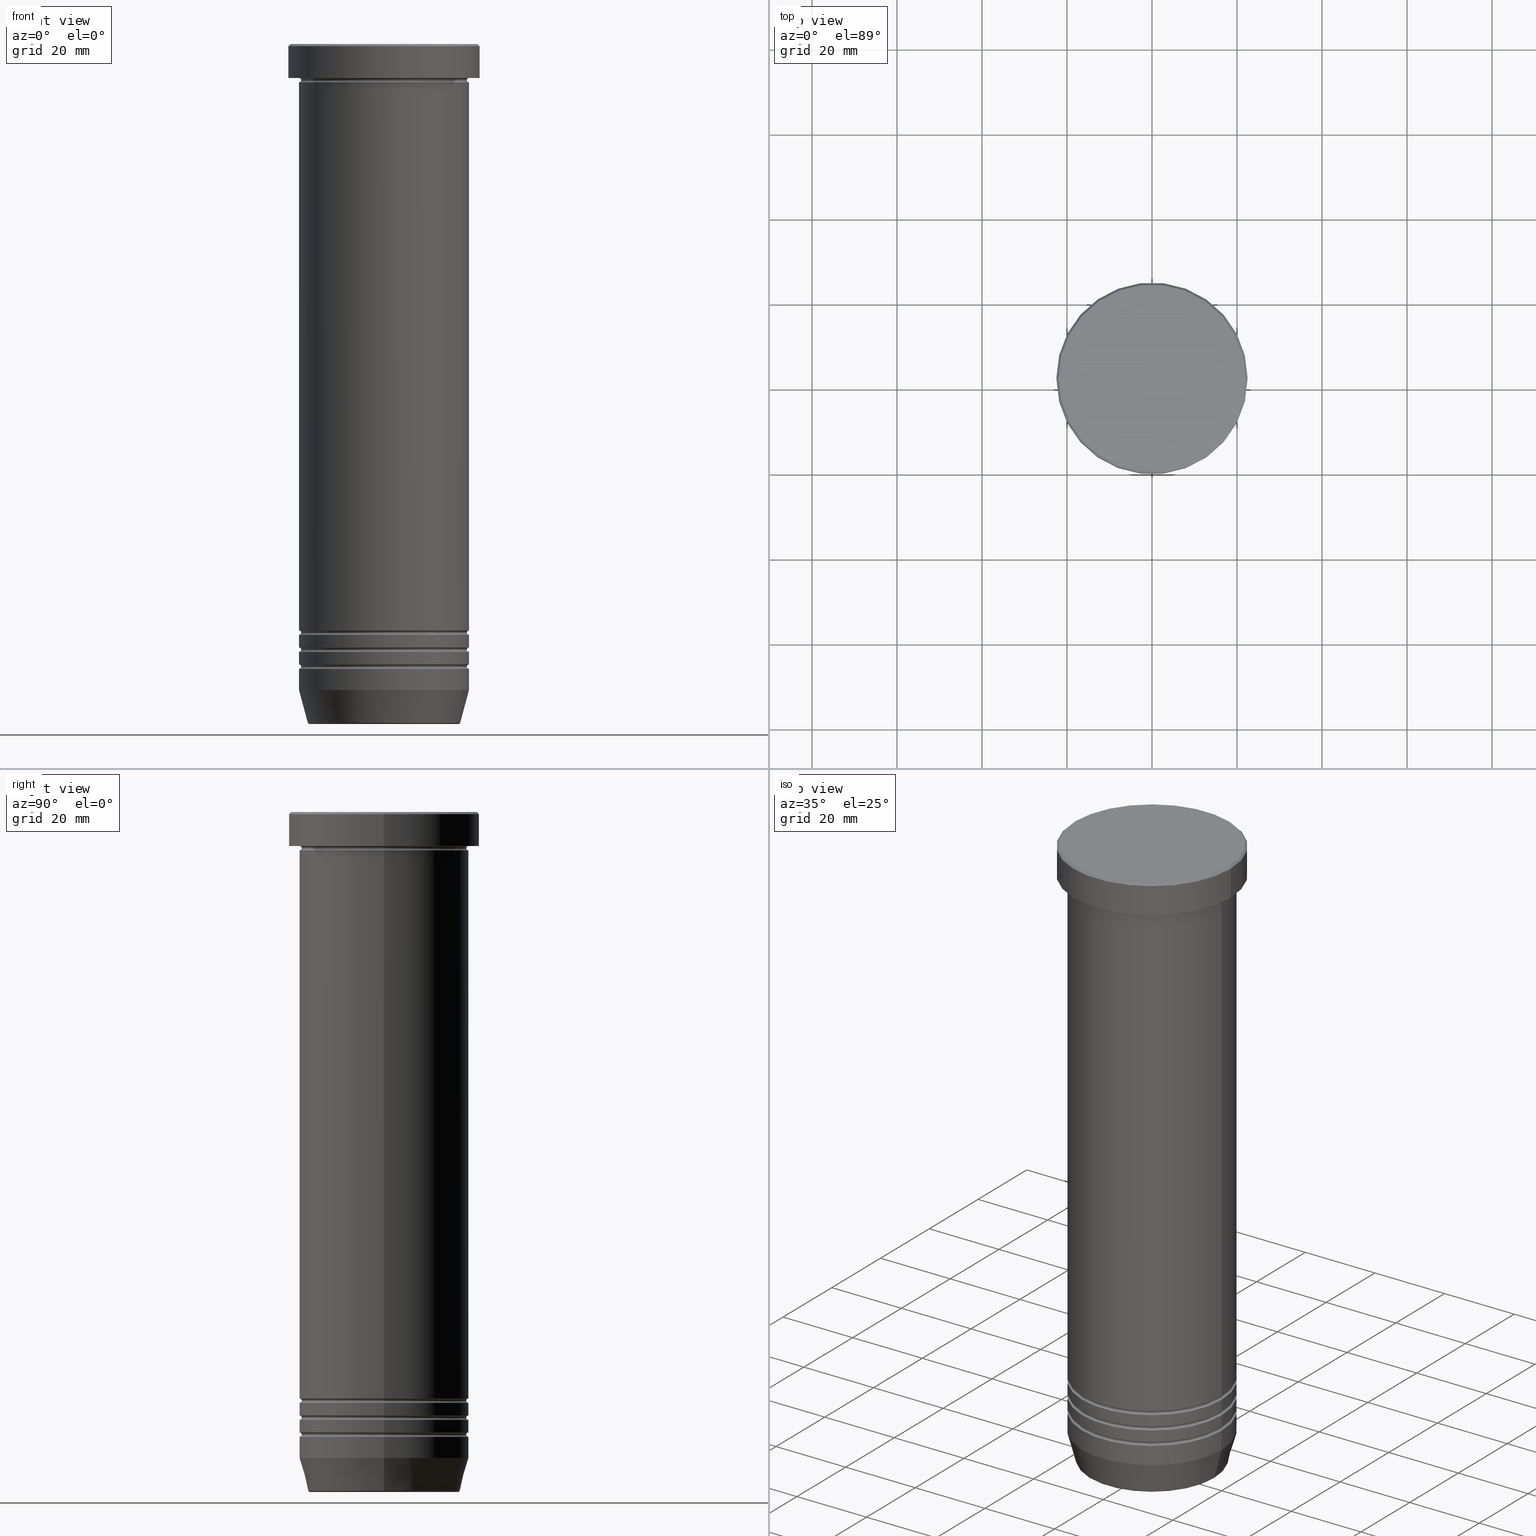
[diagram: canonical four-view strip — front | top / right | iso, engineering-drawing reading convention]
A machine part, canonical four-view strip (front | top / right | iso — engineering-drawing reading convention). The complete STEP part file that produces these views, byte-faithful:
ISO-10303-21;
HEADER;
FILE_DESCRIPTION (( 'STEP AP203' ),
    '1' );
FILE_NAME ('2e38.STEP',
    '2024-01-02T18:51:40',
    ( '' ),
    ( '' ),
    'SwSTEP 2.0',
    'SolidWorks 2019',
    '' );
FILE_SCHEMA (( 'CONFIG_CONTROL_DESIGN' ));
ENDSEC;

DATA;
#1 = LINE ( 'NONE', #243, #533 ) ;
#2 = ADVANCED_FACE ( 'NONE', ( #282 ), #859, .T. ) ;
#3 = DIRECTION ( 'NONE',  ( 0.000000000000000000, 0.000000000000000000, -1.000000000000000000 ) ) ;
#4 = DATE_AND_TIME ( #92, #773 ) ;
#5 = DIRECTION ( 'NONE',  ( -0.000000000000000000, -0.000000000000000000, 1.000000000000000000 ) ) ;
#6 = CARTESIAN_POINT ( 'NONE',  ( -19.99999999999999645, 0.000000000000000000, -146.5000000000000284 ) ) ;
#7 = ADVANCED_FACE ( 'NONE', ( #697 ), #778, .T. ) ;
#8 = APPROVAL_DATE_TIME ( #4, #788 ) ;
#9 = CARTESIAN_POINT ( 'NONE',  ( 0.000000000000000000, 0.000000000000000000, -146.0000000000000284 ) ) ;
#10 = CARTESIAN_POINT ( 'NONE',  ( 19.99999999999999645, 0.000000000000000000, 0.000000000000000000 ) ) ;
#11 = AXIS2_PLACEMENT_3D ( 'NONE', #633, #887, #221 ) ;
#12 = FACE_OUTER_BOUND ( 'NONE', #930, .T. ) ;
#13 = AXIS2_PLACEMENT_3D ( 'NONE', #676, #1000, #702 ) ;
#14 = AXIS2_PLACEMENT_3D ( 'NONE', #134, #929, #451 ) ;
#15 = ORIENTED_EDGE ( 'NONE', *, *, #38, .T. ) ;
#16 = CARTESIAN_POINT ( 'NONE',  ( 0.000000000000000000, 0.000000000000000000, -146.5000000000000284 ) ) ;
#17 = EDGE_LOOP ( 'NONE', ( #230, #605, #421, #792 ) ) ;
#18 = ORIENTED_EDGE ( 'NONE', *, *, #125, .T. ) ;
#19 = CARTESIAN_POINT ( 'NONE',  ( -19.49999999999999645, 2.418677428316021937E-15, -138.5000000000000000 ) ) ;
#20 = DIRECTION ( 'NONE',  ( -1.000000000000000000, 0.000000000000000000, 0.000000000000000000 ) ) ;
#21 = EDGE_LOOP ( 'NONE', ( #1027, #60 ) ) ;
#22 = FACE_OUTER_BOUND ( 'NONE', #541, .T. ) ;
#23 = DIRECTION ( 'NONE',  ( 1.000000000000000000, 0.000000000000000000, 0.000000000000000000 ) ) ;
#24 = DIRECTION ( 'NONE',  ( 1.000000000000000000, 0.000000000000000000, 0.000000000000000000 ) ) ;
#25 = ORIENTED_EDGE ( 'NONE', *, *, #560, .T. ) ;
#26 = VERTEX_POINT ( 'NONE', #337 ) ;
#27 = FACE_OUTER_BOUND ( 'NONE', #757, .T. ) ;
#28 = DIRECTION ( 'NONE',  ( -1.224646799147353207E-16, 1.000000000000000000, 0.000000000000000000 ) ) ;
#29 = DIRECTION ( 'NONE',  ( -0.000000000000000000, -0.000000000000000000, 1.000000000000000000 ) ) ;
#30 = ORIENTED_EDGE ( 'NONE', *, *, #229, .F. ) ;
#31 = AXIS2_PLACEMENT_3D ( 'NONE', #708, #297, #224 ) ;
#32 = TOROIDAL_SURFACE ( 'NONE', #638, 19.99999999999999645, 0.5000000000000000000 ) ;
#33 = COORDINATED_UNIVERSAL_TIME_OFFSET ( 1, 0, .AHEAD. ) ;
#34 = AXIS2_PLACEMENT_3D ( 'NONE', #1059, #657, #231 ) ;
#35 =( GEOMETRIC_REPRESENTATION_CONTEXT ( 3 ) GLOBAL_UNCERTAINTY_ASSIGNED_CONTEXT ( ( #233 ) ) GLOBAL_UNIT_ASSIGNED_CONTEXT ( ( #445, #436, #689 ) ) REPRESENTATION_CONTEXT ( 'NONE', 'WORKASPACE' ) );
#36 = DIRECTION ( 'NONE',  ( 0.000000000000000000, 0.000000000000000000, -1.000000000000000000 ) ) ;
#37 = ORIENTED_EDGE ( 'NONE', *, *, #201, .F. ) ;
#38 = EDGE_CURVE ( 'NONE', #857, #602, #506, .T. ) ;
#39 = DIRECTION ( 'NONE',  ( 0.000000000000000000, 0.000000000000000000, -1.000000000000000000 ) ) ;
#40 = CARTESIAN_POINT ( 'NONE',  ( 0.000000000000000000, 0.000000000000000000, -40.00000000000000000 ) ) ;
#41 = ORIENTED_EDGE ( 'NONE', *, *, #944, .F. ) ;
#42 = DIRECTION ( 'NONE',  ( -0.000000000000000000, -0.000000000000000000, 1.000000000000000000 ) ) ;
#43 = CARTESIAN_POINT ( 'NONE',  ( 0.000000000000000000, 0.000000000000000000, 0.000000000000000000 ) ) ;
#44 = EDGE_CURVE ( 'NONE', #686, #260, #767, .T. ) ;
#45 = CARTESIAN_POINT ( 'NONE',  ( 0.000000000000000000, 0.000000000000000000, -147.0000000000000000 ) ) ;
#46 = ORIENTED_EDGE ( 'NONE', *, *, #481, .T. ) ;
#47 = FACE_OUTER_BOUND ( 'NONE', #866, .T. ) ;
#48 = CARTESIAN_POINT ( 'NONE',  ( 0.000000000000000000, 0.000000000000000000, 0.000000000000000000 ) ) ;
#49 = ORIENTED_EDGE ( 'NONE', *, *, #99, .F. ) ;
#50 = LINE ( 'NONE', #367, #289 ) ;
#51 = ORIENTED_EDGE ( 'NONE', *, *, #110, .T. ) ;
#52 = DIRECTION ( 'NONE',  ( -1.000000000000000000, 0.000000000000000000, 0.000000000000000000 ) ) ;
#53 = TOROIDAL_SURFACE ( 'NONE', #797, 19.99999999999999645, 0.5000000000000000000 ) ;
#54 = ORIENTED_EDGE ( 'NONE', *, *, #667, .F. ) ;
#55 = TOROIDAL_SURFACE ( 'NONE', #922, 19.99999999999999645, 0.5000000000000000000 ) ;
#56 = APPROVAL_PERSON_ORGANIZATION ( #1019, #266, #790 ) ;
#57 = DIRECTION ( 'NONE',  ( 1.000000000000000000, 0.000000000000000000, 0.000000000000000000 ) ) ;
#58 = DIRECTION ( 'NONE',  ( -0.000000000000000000, -0.000000000000000000, 1.000000000000000000 ) ) ;
#59 = DIRECTION ( 'NONE',  ( -0.000000000000000000, -0.000000000000000000, 1.000000000000000000 ) ) ;
#60 = ORIENTED_EDGE ( 'NONE', *, *, #855, .F. ) ;
#61 = DIRECTION ( 'NONE',  ( 0.000000000000000000, 0.000000000000000000, -1.000000000000000000 ) ) ;
#62 = EDGE_CURVE ( 'NONE', #126, #411, #346, .T. ) ;
#63 = ORIENTED_EDGE ( 'NONE', *, *, #554, .T. ) ;
#64 = VERTEX_POINT ( 'NONE', #217 ) ;
#65 = DATE_AND_TIME ( #660, #981 ) ;
#66 = ADVANCED_FACE ( 'NONE', ( #467 ), #375, .T. ) ;
#67 = CARTESIAN_POINT ( 'NONE',  ( 0.000000000000000000, 0.000000000000000000, -159.6294095225512706 ) ) ;
#68 = CARTESIAN_POINT ( 'NONE',  ( 0.000000000000000000, 0.000000000000000000, -8.000000000000000000 ) ) ;
#69 = AXIS2_PLACEMENT_3D ( 'NONE', #210, #544, #538 ) ;
#70 = ORIENTED_EDGE ( 'NONE', *, *, #899, .F. ) ;
#71 = CIRCLE ( 'NONE', #977, 19.99999999999999289 ) ;
#72 = AXIS2_PLACEMENT_3D ( 'NONE', #377, #1042, #962 ) ;
#73 = EDGE_CURVE ( 'NONE', #288, #916, #532, .T. ) ;
#74 = CARTESIAN_POINT ( 'NONE',  ( 0.000000000000000000, 0.000000000000000000, -142.5000000000000284 ) ) ;
#75 = APPROVAL_ROLE ( '' ) ;
#76 = EDGE_CURVE ( 'NONE', #499, #278, #1046, .T. ) ;
#77 = DIRECTION ( 'NONE',  ( 1.000000000000000000, 0.000000000000000000, 0.000000000000000000 ) ) ;
#78 = CYLINDRICAL_SURFACE ( 'NONE', #1032, 20.00000000000000000 ) ;
#79 = DIRECTION ( 'NONE',  ( 1.000000000000000000, 0.000000000000000000, 0.000000000000000000 ) ) ;
#80 = AXIS2_PLACEMENT_3D ( 'NONE', #16, #500, #94 ) ;
#81 = DIRECTION ( 'NONE',  ( 0.2588190451025208505, 0.000000000000000000, 0.9659258262890683122 ) ) ;
#82 = AXIS2_PLACEMENT_3D ( 'NONE', #712, #886, #646 ) ;
#83 = CC_DESIGN_APPROVAL ( #266, ( #207 ) ) ;
#84 = APPROVAL_ROLE ( '' ) ;
#85 = DIRECTION ( 'NONE',  ( 1.000000000000000000, 0.000000000000000000, 0.000000000000000000 ) ) ;
#86 = DIRECTION ( 'NONE',  ( 1.224646799147353207E-16, 1.000000000000000000, 0.000000000000000000 ) ) ;
#87 = EDGE_CURVE ( 'NONE', #916, #288, #161, .T. ) ;
#88 = CARTESIAN_POINT ( 'NONE',  ( 0.000000000000000000, 0.000000000000000000, -40.00000000000000000 ) ) ;
#89 = DIRECTION ( 'NONE',  ( -0.000000000000000000, -0.000000000000000000, 1.000000000000000000 ) ) ;
#90 = DIRECTION ( 'NONE',  ( -0.000000000000000000, -0.000000000000000000, 1.000000000000000000 ) ) ;
#91 = DIRECTION ( 'NONE',  ( -1.000000000000000000, 1.224646799147349509E-16, 0.000000000000000000 ) ) ;
#92 = CALENDAR_DATE ( 2024, 2, 1 ) ;
#93 = DIRECTION ( 'NONE',  ( 0.000000000000000000, 0.000000000000000000, -1.000000000000000000 ) ) ;
#94 = DIRECTION ( 'NONE',  ( 1.000000000000000000, 0.000000000000000000, 0.000000000000000000 ) ) ;
#95 = VECTOR ( 'NONE', #263, 1000.000000000000000 ) ;
#96 = CIRCLE ( 'NONE', #846, 0.5000000000000004441 ) ;
#97 = ORIENTED_EDGE ( 'NONE', *, *, #629, .F. ) ;
#98 = DIRECTION ( 'NONE',  ( -0.000000000000000000, -0.000000000000000000, 1.000000000000000000 ) ) ;
#99 = EDGE_CURVE ( 'NONE', #64, #811, #905, .T. ) ;
#100 = CIRCLE ( 'NONE', #371, 19.99999999999999645 ) ;
#101 = VERTEX_POINT ( 'NONE', #998 ) ;
#102 = PRODUCT_DEFINITION_SHAPE ( 'NONE', 'NONE',  #329 ) ;
#103 = CARTESIAN_POINT ( 'NONE',  ( -19.99999999999999289, 2.449293598294705724E-15, -138.0000000000000000 ) ) ;
#104 = ORIENTED_EDGE ( 'NONE', *, *, #999, .T. ) ;
#105 = DIRECTION ( 'NONE',  ( 1.000000000000000000, 0.000000000000000000, 0.000000000000000000 ) ) ;
#106 = EDGE_LOOP ( 'NONE', ( #698, #1037, #186, #628 ) ) ;
#107 = DIRECTION ( 'NONE',  ( -1.000000000000000000, 0.000000000000000000, 0.000000000000000000 ) ) ;
#108 = DIRECTION ( 'NONE',  ( -0.000000000000000000, -0.000000000000000000, 1.000000000000000000 ) ) ;
#109 = EDGE_CURVE ( 'NONE', #545, #587, #428, .T. ) ;
#110 = EDGE_CURVE ( 'NONE', #602, #857, #141, .T. ) ;
#111 = ORIENTED_EDGE ( 'NONE', *, *, #110, .F. ) ;
#112 = COORDINATED_UNIVERSAL_TIME_OFFSET ( 1, 0, .AHEAD. ) ;
#113 = DIRECTION ( 'NONE',  ( -0.000000000000000000, -0.000000000000000000, 1.000000000000000000 ) ) ;
#114 = CARTESIAN_POINT ( 'NONE',  ( 0.000000000000000000, 0.000000000000000000, -159.5000000000000284 ) ) ;
#115 = EDGE_LOOP ( 'NONE', ( #968, #446, #218, #690 ) ) ;
#116 = ORIENTED_EDGE ( 'NONE', *, *, #73, .F. ) ;
#117 = DIRECTION ( 'NONE',  ( 0.000000000000000000, 0.000000000000000000, -1.000000000000000000 ) ) ;
#118 = EDGE_LOOP ( 'NONE', ( #344, #372 ) ) ;
#119 = AXIS2_PLACEMENT_3D ( 'NONE', #566, #380, #572 ) ;
#120 = TOROIDAL_SURFACE ( 'NONE', #475, 19.99999999999999645, 0.5000000000000000000 ) ;
#121 = CARTESIAN_POINT ( 'NONE',  ( 19.99999999999999645, 0.000000000000000000, 0.000000000000000000 ) ) ;
#122 = CIRCLE ( 'NONE', #1005, 20.00000000000000000 ) ;
#123 = EDGE_LOOP ( 'NONE', ( #960, #947, #302, #232 ) ) ;
#124 = DIRECTION ( 'NONE',  ( 1.000000000000000000, 0.000000000000000000, 0.000000000000000000 ) ) ;
#125 = EDGE_CURVE ( 'NONE', #686, #545, #398, .T. ) ;
#126 = VERTEX_POINT ( 'NONE', #103 ) ;
#127 = CYLINDRICAL_SURFACE ( 'NONE', #599, 20.00000000000000000 ) ;
#128 = CARTESIAN_POINT ( 'NONE',  ( 0.000000000000000000, 0.000000000000000000, 0.000000000000000000 ) ) ;
#129 = DIRECTION ( 'NONE',  ( 1.000000000000000000, 0.000000000000000000, 0.000000000000000000 ) ) ;
#130 = ORIENTED_EDGE ( 'NONE', *, *, #62, .F. ) ;
#131 = DIRECTION ( 'NONE',  ( 0.7071067811865524577, 8.659560562354994488E-17, -0.7071067811865426878 ) ) ;
#132 = DIRECTION ( 'NONE',  ( -1.000000000000000000, -1.224646799147349509E-16, 0.000000000000000000 ) ) ;
#133 = EDGE_LOOP ( 'NONE', ( #439, #1024, #179, #997 ) ) ;
#134 = CARTESIAN_POINT ( 'NONE',  ( 0.000000000000000000, 0.000000000000000000, -138.5000000000000000 ) ) ;
#135 = DIRECTION ( 'NONE',  ( 1.000000000000000000, 0.000000000000000000, 0.000000000000000000 ) ) ;
#136 = APPROVAL_STATUS ( 'not_yet_approved' ) ;
#137 = CARTESIAN_POINT ( 'NONE',  ( -20.00000000000000000, 2.449293598294706513E-15, -40.00000000000000000 ) ) ;
#138 = EDGE_LOOP ( 'NONE', ( #840, #770, #423, #359 ) ) ;
#139 = CYLINDRICAL_SURFACE ( 'NONE', #704, 19.99999999999999645 ) ;
#140 = FACE_OUTER_BOUND ( 'NONE', #133, .T. ) ;
#141 = CIRCLE ( 'NONE', #80, 19.49999999999999645 ) ;
#142 = ADVANCED_FACE ( 'NONE', ( #27 ), #733, .T. ) ;
#143 = PERSON_AND_ORGANIZATION ( #1055, #479 ) ;
#144 = VERTEX_POINT ( 'NONE', #563 ) ;
#145 = AXIS2_PLACEMENT_3D ( 'NONE', #261, #447, #678 ) ;
#146 = FACE_OUTER_BOUND ( 'NONE', #515, .T. ) ;
#147 = VECTOR ( 'NONE', #81, 1000.000000000000114 ) ;
#148 = ADVANCED_BREP_SHAPE_REPRESENTATION ( '2e38', ( #584, #937, #461 ), #35 ) ;
#149 = LOCAL_TIME ( 19, 51, 40.00000000000000000, #33 ) ;
#150 = DIRECTION ( 'NONE',  ( 1.000000000000000000, 0.000000000000000000, 0.000000000000000000 ) ) ;
#151 = DIRECTION ( 'NONE',  ( 0.000000000000000000, 0.000000000000000000, -1.000000000000000000 ) ) ;
#152 = CARTESIAN_POINT ( 'NONE',  ( 19.99999999999999645, 0.000000000000000000, -142.5000000000000284 ) ) ;
#153 = VERTEX_POINT ( 'NONE', #994 ) ;
#154 = DIRECTION ( 'NONE',  ( 0.000000000000000000, -1.000000000000000000, 0.000000000000000000 ) ) ;
#155 = EDGE_CURVE ( 'NONE', #1011, #995, #812, .T. ) ;
#156 = FACE_OUTER_BOUND ( 'NONE', #192, .T. ) ;
#157 = EDGE_LOOP ( 'NONE', ( #226, #206, #1040, #1023 ) ) ;
#158 = EDGE_CURVE ( 'NONE', #376, #1045, #220, .T. ) ;
#159 = CARTESIAN_POINT ( 'NONE',  ( 0.000000000000000000, 0.000000000000000000, -146.5000000000000284 ) ) ;
#160 = PERSON_AND_ORGANIZATION ( #1055, #479 ) ;
#161 = CIRCLE ( 'NONE', #664, 20.00000000000000000 ) ;
#162 = AXIS2_PLACEMENT_3D ( 'NONE', #911, #89, #176 ) ;
#163 = AXIS2_PLACEMENT_3D ( 'NONE', #239, #164, #823 ) ;
#164 = DIRECTION ( 'NONE',  ( -0.000000000000000000, -0.000000000000000000, 1.000000000000000000 ) ) ;
#165 = EDGE_CURVE ( 'NONE', #126, #802, #170, .T. ) ;
#166 = CARTESIAN_POINT ( 'NONE',  ( -19.99999999999999645, 2.449293598294706119E-15, -142.0000000000000000 ) ) ;
#167 = DIRECTION ( 'NONE',  ( 0.000000000000000000, 0.000000000000000000, -1.000000000000000000 ) ) ;
#168 = EDGE_CURVE ( 'NONE', #425, #1045, #679, .T. ) ;
#169 = CARTESIAN_POINT ( 'NONE',  ( 0.000000000000000000, 0.000000000000000000, -146.5000000000000284 ) ) ;
#170 = CIRCLE ( 'NONE', #473, 19.99999999999999289 ) ;
#171 = CIRCLE ( 'NONE', #414, 17.95570587970606269 ) ;
#172 = CIRCLE ( 'NONE', #721, 19.49999999999999645 ) ;
#173 = LOCAL_TIME ( 19, 51, 40.00000000000000000, #748 ) ;
#174 = DIRECTION ( 'NONE',  ( -0.000000000000000000, -0.000000000000000000, 1.000000000000000000 ) ) ;
#175 = SHAPE_DEFINITION_REPRESENTATION ( #102, #148 ) ;
#176 = DIRECTION ( 'NONE',  ( 1.000000000000000000, 0.000000000000000000, 0.000000000000000000 ) ) ;
#177 = CARTESIAN_POINT ( 'NONE',  ( 17.47274296656153325, 0.000000000000000000, -160.0000000000000284 ) ) ;
#178 = ADVANCED_FACE ( 'NONE', ( #146 ), #237, .F. ) ;
#179 = ORIENTED_EDGE ( 'NONE', *, *, #331, .T. ) ;
#180 = CARTESIAN_POINT ( 'NONE',  ( 0.000000000000000000, 0.000000000000000000, -142.5000000000000284 ) ) ;
#181 = VERTEX_POINT ( 'NONE', #530 ) ;
#182 = EDGE_LOOP ( 'NONE', ( #707, #274, #1006, #454 ) ) ;
#183 = AXIS2_PLACEMENT_3D ( 'NONE', #1008, #695, #607 ) ;
#184 = DIRECTION ( 'NONE',  ( 0.000000000000000000, -0.000000000000000000, 1.000000000000000000 ) ) ;
#185 = AXIS2_PLACEMENT_3D ( 'NONE', #526, #39, #936 ) ;
#186 = ORIENTED_EDGE ( 'NONE', *, *, #281, .F. ) ;
#187 = AXIS2_PLACEMENT_3D ( 'NONE', #114, #685, #273 ) ;
#188 = LINE ( 'NONE', #442, #943 ) ;
#189 = LOCAL_TIME ( 19, 51, 40.00000000000000000, #112 ) ;
#190 = ORIENTED_EDGE ( 'NONE', *, *, #383, .T. ) ;
#191 = DIRECTION ( 'NONE',  ( 1.224646799147353207E-16, 1.000000000000000000, 0.000000000000000000 ) ) ;
#192 = EDGE_LOOP ( 'NONE', ( #41, #885, #431, #700 ) ) ;
#193 = VERTEX_POINT ( 'NONE', #783 ) ;
#194 = ORIENTED_EDGE ( 'NONE', *, *, #350, .F. ) ;
#195 = DIRECTION ( 'NONE',  ( -0.000000000000000000, -0.000000000000000000, 1.000000000000000000 ) ) ;
#196 = ORIENTED_EDGE ( 'NONE', *, *, #168, .F. ) ;
#197 = PLANE ( 'NONE',  #185 ) ;
#198 = DIRECTION ( 'NONE',  ( 0.000000000000000000, 0.000000000000000000, -1.000000000000000000 ) ) ;
#199 = ADVANCED_FACE ( 'NONE', ( #47 ), #251, .T. ) ;
#200 = ORIENTED_EDGE ( 'NONE', *, *, #722, .F. ) ;
#201 = EDGE_CURVE ( 'NONE', #995, #1011, #1003, .T. ) ;
#202 = DIRECTION ( 'NONE',  ( 0.000000000000000000, 0.000000000000000000, 1.000000000000000000 ) ) ;
#203 = ORIENTED_EDGE ( 'NONE', *, *, #900, .T. ) ;
#204 = AXIS2_PLACEMENT_3D ( 'NONE', #394, #301, #957 ) ;
#205 = DIRECTION ( 'NONE',  ( 0.000000000000000000, 0.000000000000000000, -1.000000000000000000 ) ) ;
#206 = ORIENTED_EDGE ( 'NONE', *, *, #44, .T. ) ;
#207 = PRODUCT_DEFINITION_FORMATION_WITH_SPECIFIED_SOURCE ( 'LIBOVOLN�', '', #903, .NOT_KNOWN. ) ;
#208 = DIRECTION ( 'NONE',  ( 0.000000000000000000, 0.000000000000000000, -1.000000000000000000 ) ) ;
#209 = DIRECTION ( 'NONE',  ( 0.000000000000000000, 0.000000000000000000, -1.000000000000000000 ) ) ;
#210 = CARTESIAN_POINT ( 'NONE',  ( -19.99999999999999645, 2.449293598294706119E-15, -138.5000000000000000 ) ) ;
#211 = DIRECTION ( 'NONE',  ( -0.000000000000000000, -0.000000000000000000, 1.000000000000000000 ) ) ;
#212 = VERTEX_POINT ( 'NONE', #312 ) ;
#213 = CARTESIAN_POINT ( 'NONE',  ( 0.000000000000000000, 0.000000000000000000, -138.0000000000000000 ) ) ;
#214 = CARTESIAN_POINT ( 'NONE',  ( -17.47274296656153325, 2.169366823916867714E-15, -160.0000000000000284 ) ) ;
#215 = ORIENTED_EDGE ( 'NONE', *, *, #591, .F. ) ;
#216 = EDGE_CURVE ( 'NONE', #212, #64, #862, .T. ) ;
#217 = CARTESIAN_POINT ( 'NONE',  ( 20.00000000000000000, 0.000000000000000000, -139.0000000000000000 ) ) ;
#218 = ORIENTED_EDGE ( 'NONE', *, *, #743, .F. ) ;
#219 = VERTEX_POINT ( 'NONE', #316 ) ;
#220 = CIRCLE ( 'NONE', #265, 22.50000000000000000 ) ;
#221 = DIRECTION ( 'NONE',  ( 1.000000000000000000, 0.000000000000000000, 0.000000000000000000 ) ) ;
#222 = ORIENTED_EDGE ( 'NONE', *, *, #593, .T. ) ;
#223 = AXIS2_PLACEMENT_3D ( 'NONE', #804, #1044, #637 ) ;
#224 = DIRECTION ( 'NONE',  ( 1.000000000000000000, 0.000000000000000000, 0.000000000000000000 ) ) ;
#225 = TOROIDAL_SURFACE ( 'NONE', #1061, 19.99999999999999645, 0.5000000000000000000 ) ;
#226 = ORIENTED_EDGE ( 'NONE', *, *, #125, .F. ) ;
#227 = PERSON_AND_ORGANIZATION_ROLE ( 'creator' ) ;
#228 = DIRECTION ( 'NONE',  ( -0.000000000000000000, -0.000000000000000000, 1.000000000000000000 ) ) ;
#229 = EDGE_CURVE ( 'NONE', #388, #288, #725, .T. ) ;
#230 = ORIENTED_EDGE ( 'NONE', *, *, #350, .T. ) ;
#231 = DIRECTION ( 'NONE',  ( -1.000000000000000000, 1.224646799147349509E-16, 0.000000000000000000 ) ) ;
#232 = ORIENTED_EDGE ( 'NONE', *, *, #481, .F. ) ;
#233 = UNCERTAINTY_MEASURE_WITH_UNIT (LENGTH_MEASURE( 1.000000000000000082E-05 ), #445, 'distance_accuracy_value', 'NONE');
#234 = PERSON_AND_ORGANIZATION ( #1055, #479 ) ;
#235 = DIRECTION ( 'NONE',  ( -0.000000000000000000, -0.000000000000000000, 1.000000000000000000 ) ) ;
#236 = APPROVAL_DATE_TIME ( #65, #603 ) ;
#237 = TOROIDAL_SURFACE ( 'NONE', #183, 19.99999999999999645, 0.5000000000000000000 ) ;
#238 = AXIS2_PLACEMENT_3D ( 'NONE', #519, #433, #198 ) ;
#239 = CARTESIAN_POINT ( 'NONE',  ( 0.000000000000000000, 0.000000000000000000, -40.00000000000000000 ) ) ;
#240 = AXIS2_PLACEMENT_3D ( 'NONE', #649, #975, #397 ) ;
#241 = CC_DESIGN_PERSON_AND_ORGANIZATION_ASSIGNMENT ( #974, #810, ( #207 ) ) ;
#242 = APPROVAL_PERSON_ORGANIZATION ( #323, #788, #84 ) ;
#243 = CARTESIAN_POINT ( 'NONE',  ( -22.00000000000000000, 0.000000000000000000, 0.000000000000000000 ) ) ;
#244 = PERSON_AND_ORGANIZATION ( #1055, #479 ) ;
#245 = EDGE_CURVE ( 'NONE', #212, #411, #369, .T. ) ;
#246 = FACE_OUTER_BOUND ( 'NONE', #17, .T. ) ;
#247 = ADVANCED_FACE ( 'NONE', ( #967 ), #615, .F. ) ;
#248 = DIRECTION ( 'NONE',  ( 1.000000000000000000, 0.000000000000000000, 0.000000000000000000 ) ) ;
#249 = ADVANCED_FACE ( 'NONE', ( #476 ), #564, .T. ) ;
#250 = DIRECTION ( 'NONE',  ( -0.7071067811865524577, 0.000000000000000000, -0.7071067811865426878 ) ) ;
#251 = CONICAL_SURFACE ( 'NONE', #895, 22.00000000000000000, 0.7853981633974552734 ) ;
#252 = VECTOR ( 'NONE', #608, 1000.000000000000000 ) ;
#253 = TOROIDAL_SURFACE ( 'NONE', #187, 17.47274296656153325, 0.5000000000000000000 ) ;
#254 = DIRECTION ( 'NONE',  ( -0.000000000000000000, -0.000000000000000000, 1.000000000000000000 ) ) ;
#255 = DIRECTION ( 'NONE',  ( 0.000000000000000000, -1.000000000000000000, 0.000000000000000000 ) ) ;
#256 = EDGE_CURVE ( 'NONE', #802, #153, #294, .T. ) ;
#257 = ORIENTED_EDGE ( 'NONE', *, *, #912, .T. ) ;
#258 = ORIENTED_EDGE ( 'NONE', *, *, #416, .T. ) ;
#259 = DIRECTION ( 'NONE',  ( -0.000000000000000000, -0.000000000000000000, 1.000000000000000000 ) ) ;
#260 = VERTEX_POINT ( 'NONE', #946 ) ;
#261 = CARTESIAN_POINT ( 'NONE',  ( 0.000000000000000000, 0.000000000000000000, 0.000000000000000000 ) ) ;
#262 = ORIENTED_EDGE ( 'NONE', *, *, #872, .T. ) ;
#263 = DIRECTION ( 'NONE',  ( -0.000000000000000000, -0.000000000000000000, 1.000000000000000000 ) ) ;
#264 = DIRECTION ( 'NONE',  ( 1.000000000000000000, 0.000000000000000000, 0.000000000000000000 ) ) ;
#265 = AXIS2_PLACEMENT_3D ( 'NONE', #955, #208, #803 ) ;
#266 = APPROVAL ( #136, 'NEUR�EN�' ) ;
#267 = VECTOR ( 'NONE', #228, 1000.000000000000000 ) ;
#268 = CARTESIAN_POINT ( 'NONE',  ( 0.000000000000000000, 0.000000000000000000, -160.0000000000000284 ) ) ;
#269 = ORIENTED_EDGE ( 'NONE', *, *, #842, .T. ) ;
#270 = ORIENTED_EDGE ( 'NONE', *, *, #644, .T. ) ;
#271 = EDGE_CURVE ( 'NONE', #785, #181, #651, .T. ) ;
#272 = DIRECTION ( 'NONE',  ( 1.000000000000000000, 0.000000000000000000, 0.000000000000000000 ) ) ;
#273 = DIRECTION ( 'NONE',  ( 1.000000000000000000, 0.000000000000000000, 0.000000000000000000 ) ) ;
#274 = ORIENTED_EDGE ( 'NONE', *, *, #347, .T. ) ;
#275 = CARTESIAN_POINT ( 'NONE',  ( 0.000000000000000000, 0.000000000000000000, -138.5000000000000000 ) ) ;
#276 = EDGE_LOOP ( 'NONE', ( #852, #104, #868, #521 ) ) ;
#277 = DIRECTION ( 'NONE',  ( -0.000000000000000000, -0.000000000000000000, 1.000000000000000000 ) ) ;
#278 = VERTEX_POINT ( 'NONE', #761 ) ;
#279 = DIRECTION ( 'NONE',  ( -1.000000000000000000, 1.224646799147349509E-16, 0.000000000000000000 ) ) ;
#280 = ORIENTED_EDGE ( 'NONE', *, *, #531, .T. ) ;
#281 = EDGE_CURVE ( 'NONE', #153, #295, #794, .T. ) ;
#282 = FACE_OUTER_BOUND ( 'NONE', #106, .T. ) ;
#283 = LINE ( 'NONE', #1039, #567 ) ;
#284 = FACE_OUTER_BOUND ( 'NONE', #366, .T. ) ;
#285 = AXIS2_PLACEMENT_3D ( 'NONE', #378, #715, #484 ) ;
#286 = AXIS2_PLACEMENT_3D ( 'NONE', #453, #277, #938 ) ;
#287 = AXIS2_PLACEMENT_3D ( 'NONE', #45, #1014, #343 ) ;
#288 = VERTEX_POINT ( 'NONE', #1013 ) ;
#289 = VECTOR ( 'NONE', #259, 1000.000000000000000 ) ;
#290 = LINE ( 'NONE', #768, #252 ) ;
#291 = ADVANCED_FACE ( 'NONE', ( #693 ), #315, .T. ) ;
#292 = EDGE_CURVE ( 'NONE', #785, #996, #455, .T. ) ;
#293 = FACE_OUTER_BOUND ( 'NONE', #276, .T. ) ;
#294 = LINE ( 'NONE', #121, #845 ) ;
#295 = VERTEX_POINT ( 'NONE', #137 ) ;
#296 = PERSON_AND_ORGANIZATION_ROLE ( 'design_owner' ) ;
#297 = DIRECTION ( 'NONE',  ( -0.000000000000000000, -0.000000000000000000, 1.000000000000000000 ) ) ;
#298 = EDGE_LOOP ( 'NONE', ( #444, #280, #15, #958 ) ) ;
#299 = DIRECTION ( 'NONE',  ( 0.000000000000000000, 0.000000000000000000, -1.000000000000000000 ) ) ;
#300 = DIRECTION ( 'NONE',  ( 1.000000000000000000, 0.000000000000000000, 0.000000000000000000 ) ) ;
#301 = DIRECTION ( 'NONE',  ( -1.224646799147353207E-16, 1.000000000000000000, 0.000000000000000000 ) ) ;
#302 = ORIENTED_EDGE ( 'NONE', *, *, #871, .F. ) ;
#303 = AXIS2_PLACEMENT_3D ( 'NONE', #1018, #42, #935 ) ;
#304 = ORIENTED_EDGE ( 'NONE', *, *, #158, .F. ) ;
#305 = CIRCLE ( 'NONE', #403, 19.99999999999999289 ) ;
#306 = ORIENTED_EDGE ( 'NONE', *, *, #155, .T. ) ;
#307 = VECTOR ( 'NONE', #956, 1000.000000000000000 ) ;
#308 = CARTESIAN_POINT ( 'NONE',  ( -19.99999999999999645, 0.000000000000000000, -138.5000000000000000 ) ) ;
#309 = ORIENTED_EDGE ( 'NONE', *, *, #374, .T. ) ;
#310 = DIRECTION ( 'NONE',  ( -0.000000000000000000, -0.000000000000000000, 1.000000000000000000 ) ) ;
#311 = COORDINATED_UNIVERSAL_TIME_OFFSET ( 1, 0, .AHEAD. ) ;
#312 = CARTESIAN_POINT ( 'NONE',  ( -20.00000000000000000, 2.449293598294706513E-15, -139.0000000000000000 ) ) ;
#313 = FACE_OUTER_BOUND ( 'NONE', #157, .T. ) ;
#314 = CARTESIAN_POINT ( 'NONE',  ( 19.49999999999999645, 0.000000000000000000, -146.5000000000000284 ) ) ;
#315 = TOROIDAL_SURFACE ( 'NONE', #917, 17.47274296656153325, 0.5000000000000000000 ) ;
#316 = CARTESIAN_POINT ( 'NONE',  ( 20.00000000000000000, 0.000000000000000000, -40.00000000000000000 ) ) ;
#317 = DIRECTION ( 'NONE',  ( 1.000000000000000000, 0.000000000000000000, 0.000000000000000000 ) ) ;
#318 = AXIS2_PLACEMENT_3D ( 'NONE', #68, #474, #723 ) ;
#319 = CC_DESIGN_DATE_AND_TIME_ASSIGNMENT ( #512, #736, ( #706 ) ) ;
#320 = CIRCLE ( 'NONE', #11, 19.99999999999999289 ) ;
#321 = ADVANCED_FACE ( 'NONE', ( #604 ), #1047, .T. ) ;
#322 = EDGE_CURVE ( 'NONE', #260, #686, #171, .T. ) ;
#323 = PERSON_AND_ORGANIZATION ( #1055, #479 ) ;
#324 = CARTESIAN_POINT ( 'NONE',  ( 0.000000000000000000, 0.000000000000000000, -143.0000000000000284 ) ) ;
#325 = DIRECTION ( 'NONE',  ( 1.000000000000000000, 0.000000000000000000, 0.000000000000000000 ) ) ;
#326 = FACE_OUTER_BOUND ( 'NONE', #138, .T. ) ;
#327 = DIRECTION ( 'NONE',  ( 0.000000000000000000, 0.000000000000000000, -1.000000000000000000 ) ) ;
#328 = CARTESIAN_POINT ( 'NONE',  ( 0.000000000000000000, 0.000000000000000000, -8.000000000000000000 ) ) ;
#329 = PRODUCT_DEFINITION ( 'NEZN�M�', '', #207, #894 ) ;
#330 = DIRECTION ( 'NONE',  ( 1.000000000000000000, 0.000000000000000000, 0.000000000000000000 ) ) ;
#331 = EDGE_CURVE ( 'NONE', #1011, #144, #896, .T. ) ;
#332 = AXIS2_PLACEMENT_3D ( 'NONE', #809, #547, #150 ) ;
#333 = AXIS2_PLACEMENT_3D ( 'NONE', #1012, #780, #1002 ) ;
#334 = AXIS2_PLACEMENT_3D ( 'NONE', #839, #612, #129 ) ;
#335 = CC_DESIGN_SECURITY_CLASSIFICATION ( #706, ( #207 ) ) ;
#336 = DIRECTION ( 'NONE',  ( -0.2588190451025208505, 3.169619151431766174E-17, 0.9659258262890683122 ) ) ;
#337 = CARTESIAN_POINT ( 'NONE',  ( 20.00000000000000000, 2.449293598294706513E-15, -8.000000000000000000 ) ) ;
#338 = CARTESIAN_POINT ( 'NONE',  ( 22.00000000000000000, 2.724839128102860991E-15, 0.000000000000000000 ) ) ;
#339 = ORIENTED_EDGE ( 'NONE', *, *, #62, .T. ) ;
#340 = CARTESIAN_POINT ( 'NONE',  ( 0.000000000000000000, 0.000000000000000000, 0.000000000000000000 ) ) ;
#341 = ORIENTED_EDGE ( 'NONE', *, *, #76, .T. ) ;
#342 = DIRECTION ( 'NONE',  ( -0.000000000000000000, -0.000000000000000000, 1.000000000000000000 ) ) ;
#343 = DIRECTION ( 'NONE',  ( 1.000000000000000000, 0.000000000000000000, 0.000000000000000000 ) ) ;
#344 = ORIENTED_EDGE ( 'NONE', *, *, #872, .F. ) ;
#345 = ORIENTED_EDGE ( 'NONE', *, *, #591, .T. ) ;
#346 = CIRCLE ( 'NONE', #69, 0.5000000000000004441 ) ;
#347 = EDGE_CURVE ( 'NONE', #996, #193, #863, .T. ) ;
#348 = EDGE_CURVE ( 'NONE', #499, #1045, #717, .T. ) ;
#349 = DIRECTION ( 'NONE',  ( -0.000000000000000000, -0.000000000000000000, 1.000000000000000000 ) ) ;
#350 = EDGE_CURVE ( 'NONE', #1056, #921, #320, .T. ) ;
#351 = CIRCLE ( 'NONE', #961, 20.00000000000000000 ) ;
#352 = CIRCLE ( 'NONE', #13, 20.00000000000000000 ) ;
#353 = ORIENTED_EDGE ( 'NONE', *, *, #165, .T. ) ;
#354 = CALENDAR_DATE ( 2024, 2, 1 ) ;
#355 = CARTESIAN_POINT ( 'NONE',  ( 0.000000000000000000, 0.000000000000000000, -159.5000000000000284 ) ) ;
#356 = ORIENTED_EDGE ( 'NONE', *, *, #245, .T. ) ;
#357 = EDGE_LOOP ( 'NONE', ( #924, #339, #618, #854 ) ) ;
#358 = EDGE_LOOP ( 'NONE', ( #97, #353, #556, #880 ) ) ;
#359 = ORIENTED_EDGE ( 'NONE', *, *, #245, .F. ) ;
#360 = CARTESIAN_POINT ( 'NONE',  ( 20.00000000000000000, 2.449293598294706513E-15, -8.500000000000000000 ) ) ;
#361 = ORIENTED_EDGE ( 'NONE', *, *, #109, .F. ) ;
#362 = CARTESIAN_POINT ( 'NONE',  ( -20.00000000000000000, 2.449293598294706513E-15, -152.0000000000000000 ) ) ;
#363 = EDGE_LOOP ( 'NONE', ( #30, #546, #517, #116 ) ) ;
#364 = ADVANCED_FACE ( 'NONE', ( #156 ), #120, .F. ) ;
#365 = FACE_OUTER_BOUND ( 'NONE', #795, .T. ) ;
#366 = EDGE_LOOP ( 'NONE', ( #413, #610, #46, #430 ) ) ;
#367 = CARTESIAN_POINT ( 'NONE',  ( 20.00000000000000000, 0.000000000000000000, 0.000000000000000000 ) ) ;
#368 = DIRECTION ( 'NONE',  ( -0.000000000000000000, -0.000000000000000000, 1.000000000000000000 ) ) ;
#369 = CIRCLE ( 'NONE', #636, 0.5000000000000004441 ) ;
#370 = DIRECTION ( 'NONE',  ( -0.000000000000000000, -0.000000000000000000, 1.000000000000000000 ) ) ;
#371 = AXIS2_PLACEMENT_3D ( 'NONE', #879, #58, #619 ) ;
#372 = ORIENTED_EDGE ( 'NONE', *, *, #827, .F. ) ;
#373 = ORIENTED_EDGE ( 'NONE', *, *, #999, .F. ) ;
#374 = EDGE_CURVE ( 'NONE', #26, #144, #703, .T. ) ;
#375 = PLANE ( 'NONE',  #384 ) ;
#376 = VERTEX_POINT ( 'NONE', #1052 ) ;
#377 = CARTESIAN_POINT ( 'NONE',  ( 0.000000000000000000, 0.000000000000000000, -138.5000000000000000 ) ) ;
#378 = CARTESIAN_POINT ( 'NONE',  ( 19.99999999999999645, 2.449293598294706119E-15, -138.5000000000000000 ) ) ;
#379 = ORIENTED_EDGE ( 'NONE', *, *, #772, .T. ) ;
#380 = DIRECTION ( 'NONE',  ( -0.000000000000000000, -0.000000000000000000, 1.000000000000000000 ) ) ;
#381 = ADVANCED_FACE ( 'NONE', ( #392 ), #647, .T. ) ;
#382 = CARTESIAN_POINT ( 'NONE',  ( 0.000000000000000000, 0.000000000000000000, -9.000000000000001776 ) ) ;
#383 = EDGE_CURVE ( 'NONE', #921, #1056, #71, .T. ) ;
#384 = AXIS2_PLACEMENT_3D ( 'NONE', #711, #630, #786 ) ;
#385 = DIRECTION ( 'NONE',  ( 1.000000000000000000, 0.000000000000000000, 0.000000000000000000 ) ) ;
#386 = CIRCLE ( 'NONE', #986, 0.5000000000000004441 ) ;
#387 = AXIS2_PLACEMENT_3D ( 'NONE', #88, #819, #747 ) ;
#388 = VERTEX_POINT ( 'NONE', #844 ) ;
#389 = ADVANCED_FACE ( 'NONE', ( #737 ), #507, .F. ) ;
#390 = AXIS2_PLACEMENT_3D ( 'NONE', #169, #492, #79 ) ;
#391 = CC_DESIGN_PERSON_AND_ORGANIZATION_ASSIGNMENT ( #244, #909, ( #329 ) ) ;
#392 = FACE_OUTER_BOUND ( 'NONE', #807, .T. ) ;
#393 = DIRECTION ( 'NONE',  ( -1.000000000000000000, 0.000000000000000000, 0.000000000000000000 ) ) ;
#394 = CARTESIAN_POINT ( 'NONE',  ( 19.99999999999999645, 2.449293598294706119E-15, -142.5000000000000284 ) ) ;
#395 = DIRECTION ( 'NONE',  ( 1.000000000000000000, 0.000000000000000000, 0.000000000000000000 ) ) ;
#396 = EDGE_CURVE ( 'NONE', #718, #376, #1, .T. ) ;
#397 = DIRECTION ( 'NONE',  ( 1.000000000000000000, 0.000000000000000000, 0.000000000000000000 ) ) ;
#398 = LINE ( 'NONE', #668, #940 ) ;
#399 = CARTESIAN_POINT ( 'NONE',  ( 0.000000000000000000, 0.000000000000000000, -142.5000000000000284 ) ) ;
#400 = CLOSED_SHELL ( 'NONE', ( #199, #966, #247, #728, #381, #66, #7, #691, #540, #991, #426, #969, #249 ) ) ;
#401 = CARTESIAN_POINT ( 'NONE',  ( 0.000000000000000000, 0.000000000000000000, 0.000000000000000000 ) ) ;
#402 = AXIS2_PLACEMENT_3D ( 'NONE', #399, #167, #498 ) ;
#403 = AXIS2_PLACEMENT_3D ( 'NONE', #477, #589, #395 ) ;
#404 = CARTESIAN_POINT ( 'NONE',  ( 19.99999999999999645, 0.000000000000000000, -146.5000000000000284 ) ) ;
#405 = COORDINATED_UNIVERSAL_TIME_OFFSET ( 1, 0, .AHEAD. ) ;
#406 = CARTESIAN_POINT ( 'NONE',  ( 0.000000000000000000, 0.000000000000000000, 0.000000000000000000 ) ) ;
#407 = CARTESIAN_POINT ( 'NONE',  ( -19.50000000000000000, 2.418677428316022726E-15, -8.500000000000000000 ) ) ;
#408 = DIRECTION ( 'NONE',  ( 1.000000000000000000, 0.000000000000000000, 0.000000000000000000 ) ) ;
#409 = ADVANCED_FACE ( 'NONE', ( #246 ), #410, .T. ) ;
#410 = CYLINDRICAL_SURFACE ( 'NONE', #906, 19.99999999999999645 ) ;
#411 = VERTEX_POINT ( 'NONE', #19 ) ;
#412 = VECTOR ( 'NONE', #131, 1000.000000000000000 ) ;
#413 = ORIENTED_EDGE ( 'NONE', *, *, #925, .F. ) ;
#414 = AXIS2_PLACEMENT_3D ( 'NONE', #932, #850, #107 ) ;
#415 = AXIS2_PLACEMENT_3D ( 'NONE', #324, #984, #248 ) ;
#416 = EDGE_CURVE ( 'NONE', #1045, #376, #1004, .T. ) ;
#417 = TOROIDAL_SURFACE ( 'NONE', #683, 20.00000000000000000, 0.5000000000000000000 ) ;
#418 = CARTESIAN_POINT ( 'NONE',  ( 0.000000000000000000, 0.000000000000000000, 0.000000000000000000 ) ) ;
#419 = SECURITY_CLASSIFICATION_LEVEL ( 'unclassified' ) ;
#420 = CC_DESIGN_PERSON_AND_ORGANIZATION_ASSIGNMENT ( #143, #227, ( #207 ) ) ;
#421 = ORIENTED_EDGE ( 'NONE', *, *, #912, .F. ) ;
#422 = DIRECTION ( 'NONE',  ( -0.000000000000000000, -0.000000000000000000, 1.000000000000000000 ) ) ;
#423 = ORIENTED_EDGE ( 'NONE', *, *, #836, .T. ) ;
#424 = ORIENTED_EDGE ( 'NONE', *, *, #158, .T. ) ;
#425 = VERTEX_POINT ( 'NONE', #338 ) ;
#426 = ADVANCED_FACE ( 'NONE', ( #907 ), #882, .F. ) ;
#427 = ADVANCED_FACE ( 'NONE', ( #749 ), #457, .F. ) ;
#428 = LINE ( 'NONE', #824, #95 ) ;
#429 = CYLINDRICAL_SURFACE ( 'NONE', #655, 22.50000000000000000 ) ;
#430 = ORIENTED_EDGE ( 'NONE', *, *, #216, .F. ) ;
#431 = ORIENTED_EDGE ( 'NONE', *, *, #472, .F. ) ;
#432 = CALENDAR_DATE ( 2024, 2, 1 ) ;
#433 = DIRECTION ( 'NONE',  ( -0.000000000000000000, -1.000000000000000000, -0.000000000000000000 ) ) ;
#434 = EDGE_LOOP ( 'NONE', ( #306, #460, #215, #553 ) ) ;
#435 = AXIS2_PLACEMENT_3D ( 'NONE', #40, #514, #441 ) ;
#436 =( NAMED_UNIT ( * ) PLANE_ANGLE_UNIT ( ) SI_UNIT ( $, .RADIAN. ) );
#437 = CIRCLE ( 'NONE', #942, 20.00000000000000000 ) ;
#438 = CIRCLE ( 'NONE', #334, 20.00000000000000000 ) ;
#439 = ORIENTED_EDGE ( 'NONE', *, *, #632, .F. ) ;
#440 = TOROIDAL_SURFACE ( 'NONE', #14, 19.99999999999999645, 0.5000000000000000000 ) ;
#441 = DIRECTION ( 'NONE',  ( 1.000000000000000000, 0.000000000000000000, 0.000000000000000000 ) ) ;
#442 = CARTESIAN_POINT ( 'NONE',  ( 20.00000000000000000, 0.000000000000000000, 0.000000000000000000 ) ) ;
#443 = ORIENTED_EDGE ( 'NONE', *, *, #855, .T. ) ;
#444 = ORIENTED_EDGE ( 'NONE', *, *, #775, .T. ) ;
#445 =( LENGTH_UNIT ( ) NAMED_UNIT ( * ) SI_UNIT ( .MILLI., .METRE. ) );
#446 = ORIENTED_EDGE ( 'NONE', *, *, #109, .T. ) ;
#447 = DIRECTION ( 'NONE',  ( -0.000000000000000000, -0.000000000000000000, 1.000000000000000000 ) ) ;
#448 = DIRECTION ( 'NONE',  ( -0.000000000000000000, -1.000000000000000000, -0.000000000000000000 ) ) ;
#449 = ORIENTED_EDGE ( 'NONE', *, *, #741, .T. ) ;
#450 = ORIENTED_EDGE ( 'NONE', *, *, #1054, .F. ) ;
#451 = DIRECTION ( 'NONE',  ( -1.000000000000000000, 0.000000000000000000, 0.000000000000000000 ) ) ;
#452 = LINE ( 'NONE', #800, #307 ) ;
#453 = CARTESIAN_POINT ( 'NONE',  ( 0.000000000000000000, 0.000000000000000000, -160.0000000000000284 ) ) ;
#454 = ORIENTED_EDGE ( 'NONE', *, *, #271, .F. ) ;
#455 = CIRCLE ( 'NONE', #796, 20.00000000000000000 ) ;
#456 = DIRECTION ( 'NONE',  ( -1.000000000000000000, 0.000000000000000000, 0.000000000000000000 ) ) ;
#457 = TOROIDAL_SURFACE ( 'NONE', #769, 19.99999999999999645, 0.5000000000000000000 ) ;
#458 = CIRCLE ( 'NONE', #597, 22.50000000000000000 ) ;
#459 = AXIS2_PLACEMENT_3D ( 'NONE', #580, #255, #495 ) ;
#460 = ORIENTED_EDGE ( 'NONE', *, *, #632, .T. ) ;
#461 = AXIS2_PLACEMENT_3D ( 'NONE', #934, #202, #777 ) ;
#462 = DIRECTION ( 'NONE',  ( 1.000000000000000000, 0.000000000000000000, 0.000000000000000000 ) ) ;
#463 = CYLINDRICAL_SURFACE ( 'NONE', #964, 20.00000000000000000 ) ;
#464 = DIRECTION ( 'NONE',  ( 0.000000000000000000, 0.000000000000000000, -1.000000000000000000 ) ) ;
#465 = ORIENTED_EDGE ( 'NONE', *, *, #820, .F. ) ;
#466 = ADVANCED_FACE ( 'NONE', ( #12 ), #53, .F. ) ;
#467 = FACE_OUTER_BOUND ( 'NONE', #118, .T. ) ;
#468 = CARTESIAN_POINT ( 'NONE',  ( 19.99999999999999645, 0.000000000000000000, -142.0000000000000000 ) ) ;
#469 = DIRECTION ( 'NONE',  ( -0.000000000000000000, -0.000000000000000000, 1.000000000000000000 ) ) ;
#470 = ORIENTED_EDGE ( 'NONE', *, *, #347, .F. ) ;
#471 = LINE ( 'NONE', #486, #147 ) ;
#472 = EDGE_CURVE ( 'NONE', #193, #181, #616, .T. ) ;
#473 = AXIS2_PLACEMENT_3D ( 'NONE', #213, #793, #875 ) ;
#474 = DIRECTION ( 'NONE',  ( -0.000000000000000000, -0.000000000000000000, 1.000000000000000000 ) ) ;
#475 = AXIS2_PLACEMENT_3D ( 'NONE', #74, #469, #385 ) ;
#476 = FACE_OUTER_BOUND ( 'NONE', #881, .T. ) ;
#477 = CARTESIAN_POINT ( 'NONE',  ( 0.000000000000000000, 0.000000000000000000, -138.0000000000000000 ) ) ;
#478 = CIRCLE ( 'NONE', #665, 17.47274296656153325 ) ;
#479 = ORGANIZATION ( 'NEUR�EN�', 'NEUR�EN�', '' ) ;
#480 = PLANE ( 'NONE',  #387 ) ;
#481 = EDGE_CURVE ( 'NONE', #557, #64, #502, .T. ) ;
#482 = EDGE_CURVE ( 'NONE', #921, #785, #835, .T. ) ;
#483 = CARTESIAN_POINT ( 'NONE',  ( 0.000000000000000000, 0.000000000000000000, -160.0000000000000284 ) ) ;
#484 = DIRECTION ( 'NONE',  ( -1.000000000000000000, -1.224646799147349509E-16, 0.000000000000000000 ) ) ;
#485 = FACE_OUTER_BOUND ( 'NONE', #358, .T. ) ;
#486 = CARTESIAN_POINT ( 'NONE',  ( 17.85640646055101044, 0.000000000000000000, -160.0000000000000284 ) ) ;
#487 = FACE_OUTER_BOUND ( 'NONE', #622, .T. ) ;
#488 = AXIS2_PLACEMENT_3D ( 'NONE', #505, #422, #687 ) ;
#489 = DIRECTION ( 'NONE',  ( 1.000000000000000000, 0.000000000000000000, 0.000000000000000000 ) ) ;
#490 = CIRCLE ( 'NONE', #720, 19.49999999999999645 ) ;
#491 = CIRCLE ( 'NONE', #34, 0.5000000000000004441 ) ;
#492 = DIRECTION ( 'NONE',  ( -0.000000000000000000, -0.000000000000000000, 1.000000000000000000 ) ) ;
#493 = DIRECTION ( 'NONE',  ( -0.000000000000000000, -1.000000000000000000, -0.000000000000000000 ) ) ;
#494 = CIRCLE ( 'NONE', #1033, 0.5000000000000004441 ) ;
#495 = DIRECTION ( 'NONE',  ( 0.000000000000000000, 0.000000000000000000, -1.000000000000000000 ) ) ;
#496 = CARTESIAN_POINT ( 'NONE',  ( 0.000000000000000000, 0.000000000000000000, -142.5000000000000284 ) ) ;
#497 = LINE ( 'NONE', #10, #582 ) ;
#498 = DIRECTION ( 'NONE',  ( 1.000000000000000000, 0.000000000000000000, 0.000000000000000000 ) ) ;
#499 = VERTEX_POINT ( 'NONE', #901 ) ;
#500 = DIRECTION ( 'NONE',  ( 0.000000000000000000, 0.000000000000000000, -1.000000000000000000 ) ) ;
#501 = EDGE_LOOP ( 'NONE', ( #262, #877, #890, #674 ) ) ;
#502 = LINE ( 'NONE', #987, #829 ) ;
#503 = DIRECTION ( 'NONE',  ( 0.000000000000000000, 0.000000000000000000, -1.000000000000000000 ) ) ;
#504 = ORIENTED_EDGE ( 'NONE', *, *, #871, .T. ) ;
#505 = CARTESIAN_POINT ( 'NONE',  ( 0.000000000000000000, 0.000000000000000000, -8.500000000000000000 ) ) ;
#506 = CIRCLE ( 'NONE', #734, 19.49999999999999645 ) ;
#507 = TOROIDAL_SURFACE ( 'NONE', #918, 19.99999999999999645, 0.5000000000000000000 ) ;
#508 = CARTESIAN_POINT ( 'NONE',  ( 22.50000000000000000, 0.000000000000000000, -0.4999999999999935052 ) ) ;
#509 = CIRCLE ( 'NONE', #815, 20.00000000000000000 ) ;
#510 = TOROIDAL_SURFACE ( 'NONE', #390, 19.99999999999999645, 0.5000000000000000000 ) ;
#511 = ORIENTED_EDGE ( 'NONE', *, *, #662, .F. ) ;
#512 = DATE_AND_TIME ( #576, #173 ) ;
#513 = ADVANCED_FACE ( 'NONE', ( #487 ), #585, .T. ) ;
#514 = DIRECTION ( 'NONE',  ( -0.000000000000000000, -0.000000000000000000, 1.000000000000000000 ) ) ;
#515 = EDGE_LOOP ( 'NONE', ( #714, #562, #269, #51 ) ) ;
#516 = DIRECTION ( 'NONE',  ( -0.000000000000000000, -0.000000000000000000, 1.000000000000000000 ) ) ;
#517 = ORIENTED_EDGE ( 'NONE', *, *, #1028, .T. ) ;
#518 = ORIENTED_EDGE ( 'NONE', *, *, #990, .T. ) ;
#519 = CARTESIAN_POINT ( 'NONE',  ( -20.00000000000000000, 0.000000000000000000, -8.500000000000000000 ) ) ;
#520 = CARTESIAN_POINT ( 'NONE',  ( 19.49999999999999645, 0.000000000000000000, -138.5000000000000000 ) ) ;
#521 = ORIENTED_EDGE ( 'NONE', *, *, #900, .F. ) ;
#522 = CARTESIAN_POINT ( 'NONE',  ( -19.99999999999999645, 2.449293598294706119E-15, -142.5000000000000284 ) ) ;
#523 = VERTEX_POINT ( 'NONE', #166 ) ;
#524 = CARTESIAN_POINT ( 'NONE',  ( 0.000000000000000000, 0.000000000000000000, -146.5000000000000284 ) ) ;
#525 = EDGE_LOOP ( 'NONE', ( #713, #528 ) ) ;
#526 = CARTESIAN_POINT ( 'NONE',  ( 0.000000000000000000, 22.50000000000000000, -8.000000000000000000 ) ) ;
#527 = DIRECTION ( 'NONE',  ( -0.000000000000000000, -0.000000000000000000, 1.000000000000000000 ) ) ;
#528 = ORIENTED_EDGE ( 'NONE', *, *, #650, .T. ) ;
#529 = ADVANCED_FACE ( 'NONE', ( #485 ), #825, .T. ) ;
#530 = CARTESIAN_POINT ( 'NONE',  ( -19.49999999999999645, 2.418677428316022331E-15, -142.5000000000000284 ) ) ;
#531 = EDGE_CURVE ( 'NONE', #101, #857, #549, .T. ) ;
#532 = CIRCLE ( 'NONE', #578, 20.00000000000000000 ) ;
#533 = VECTOR ( 'NONE', #250, 1000.000000000000000 ) ;
#534 = CIRCLE ( 'NONE', #240, 20.00000000000000000 ) ;
#535 = DIRECTION ( 'NONE',  ( 1.000000000000000000, 0.000000000000000000, 0.000000000000000000 ) ) ;
#536 = EDGE_LOOP ( 'NONE', ( #874, #37, #518, #762 ) ) ;
#537 = CARTESIAN_POINT ( 'NONE',  ( 0.000000000000000000, 0.000000000000000000, -152.0000000000000000 ) ) ;
#538 = DIRECTION ( 'NONE',  ( -1.000000000000000000, 1.224646799147349509E-16, 0.000000000000000000 ) ) ;
#539 = CARTESIAN_POINT ( 'NONE',  ( -19.99999999999999289, 2.449293598294705724E-15, -146.0000000000000284 ) ) ;
#540 = ADVANCED_FACE ( 'NONE', ( #931, #787 ), #197, .T. ) ;
#541 = EDGE_LOOP ( 'NONE', ( #760, #443, #684, #258 ) ) ;
#542 = FACE_OUTER_BOUND ( 'NONE', #123, .T. ) ;
#543 = ORIENTED_EDGE ( 'NONE', *, *, #666, .F. ) ;
#544 = DIRECTION ( 'NONE',  ( 1.224646799147353207E-16, 1.000000000000000000, 0.000000000000000000 ) ) ;
#545 = VERTEX_POINT ( 'NONE', #362 ) ;
#546 = ORIENTED_EDGE ( 'NONE', *, *, #827, .T. ) ;
#547 = DIRECTION ( 'NONE',  ( -0.000000000000000000, -0.000000000000000000, 1.000000000000000000 ) ) ;
#548 = CARTESIAN_POINT ( 'NONE',  ( 20.00000000000000000, 0.000000000000000000, -9.000000000000001776 ) ) ;
#549 = CIRCLE ( 'NONE', #333, 0.5000000000000004441 ) ;
#550 = CIRCLE ( 'NONE', #897, 19.99999999999999645 ) ;
#551 = ADVANCED_FACE ( 'NONE', ( #284 ), #620, .T. ) ;
#552 = APPROVAL_PERSON_ORGANIZATION ( #160, #603, #75 ) ;
#553 = ORIENTED_EDGE ( 'NONE', *, *, #331, .F. ) ;
#554 = EDGE_CURVE ( 'NONE', #545, #870, #437, .T. ) ;
#555 = DIRECTION ( 'NONE',  ( -0.000000000000000000, -1.000000000000000000, -0.000000000000000000 ) ) ;
#556 = ORIENTED_EDGE ( 'NONE', *, *, #256, .T. ) ;
#557 = VERTEX_POINT ( 'NONE', #468 ) ;
#558 = APPLICATION_CONTEXT ( 'configuration controlled 3d designs of mechanical parts and assemblies' ) ;
#559 = DIRECTION ( 'NONE',  ( -0.000000000000000000, -0.000000000000000000, 1.000000000000000000 ) ) ;
#560 = EDGE_CURVE ( 'NONE', #557, #193, #735, .T. ) ;
#561 = DIRECTION ( 'NONE',  ( 1.000000000000000000, 0.000000000000000000, 0.000000000000000000 ) ) ;
#562 = ORIENTED_EDGE ( 'NONE', *, *, #743, .T. ) ;
#563 = CARTESIAN_POINT ( 'NONE',  ( -20.00000000000000000, 0.000000000000000000, -8.000000000000000000 ) ) ;
#564 = CONICAL_SURFACE ( 'NONE', #701, 22.00000000000000000, 0.7853981633974552734 ) ;
#565 = AXIS2_PLACEMENT_3D ( 'NONE', #588, #830, #85 ) ;
#566 = CARTESIAN_POINT ( 'NONE',  ( 0.000000000000000000, 0.000000000000000000, -139.0000000000000000 ) ) ;
#567 = VECTOR ( 'NONE', #569, 1000.000000000000000 ) ;
#568 = TOROIDAL_SURFACE ( 'NONE', #739, 20.00000000000000000, 0.5000000000000000000 ) ;
#569 = DIRECTION ( 'NONE',  ( -0.000000000000000000, -0.000000000000000000, 1.000000000000000000 ) ) ;
#570 = EDGE_CURVE ( 'NONE', #425, #718, #751, .T. ) ;
#571 = CARTESIAN_POINT ( 'NONE',  ( 0.000000000000000000, 0.000000000000000000, -146.5000000000000284 ) ) ;
#572 = DIRECTION ( 'NONE',  ( 1.000000000000000000, 0.000000000000000000, 0.000000000000000000 ) ) ;
#573 = FACE_OUTER_BOUND ( 'NONE', #501, .T. ) ;
#574 = CARTESIAN_POINT ( 'NONE',  ( 19.50000000000000000, 0.000000000000000000, -8.500000000000000000 ) ) ;
#575 = DIRECTION ( 'NONE',  ( 0.000000000000000000, 0.000000000000000000, -1.000000000000000000 ) ) ;
#576 = CALENDAR_DATE ( 2024, 2, 1 ) ;
#577 = CARTESIAN_POINT ( 'NONE',  ( 0.000000000000000000, 0.000000000000000000, -0.4999999999999935052 ) ) ;
#578 = AXIS2_PLACEMENT_3D ( 'NONE', #799, #878, #57 ) ;
#579 = EDGE_CURVE ( 'NONE', #802, #811, #96, .T. ) ;
#580 = CARTESIAN_POINT ( 'NONE',  ( 17.47274296656153325, 0.000000000000000000, -159.5000000000000284 ) ) ;
#581 = AXIS2_PLACEMENT_3D ( 'NONE', #152, #716, #464 ) ;
#582 = VECTOR ( 'NONE', #349, 1000.000000000000000 ) ;
#583 = CC_DESIGN_APPROVAL ( #788, ( #706 ) ) ;
#584 = MANIFOLD_SOLID_BREP ( 'Zkosen�1', #400 ) ;
#585 = CYLINDRICAL_SURFACE ( 'NONE', #162, 20.00000000000000000 ) ;
#586 = DIRECTION ( 'NONE',  ( 1.000000000000000000, 0.000000000000000000, 0.000000000000000000 ) ) ;
#587 = VERTEX_POINT ( 'NONE', #971 ) ;
#588 = CARTESIAN_POINT ( 'NONE',  ( 0.000000000000000000, 0.000000000000000000, -8.500000000000000000 ) ) ;
#589 = DIRECTION ( 'NONE',  ( -0.000000000000000000, -0.000000000000000000, 1.000000000000000000 ) ) ;
#590 = ORIENTED_EDGE ( 'NONE', *, *, #396, .T. ) ;
#591 = EDGE_CURVE ( 'NONE', #144, #26, #351, .T. ) ;
#592 = PLANE ( 'NONE',  #640 ) ;
#593 = EDGE_CURVE ( 'NONE', #181, #193, #490, .T. ) ;
#594 = ORIENTED_EDGE ( 'NONE', *, *, #155, .F. ) ;
#595 = AXIS2_PLACEMENT_3D ( 'NONE', #645, #973, #1060 ) ;
#596 = VECTOR ( 'NONE', #979, 1000.000000000000000 ) ;
#597 = AXIS2_PLACEMENT_3D ( 'NONE', #730, #235, #408 ) ;
#598 = AXIS2_PLACEMENT_3D ( 'NONE', #483, #368, #945 ) ;
#599 = AXIS2_PLACEMENT_3D ( 'NONE', #1034, #211, #631 ) ;
#600 = EDGE_LOOP ( 'NONE', ( #345, #309 ) ) ;
#601 = ORIENTED_EDGE ( 'NONE', *, *, #990, .F. ) ;
#602 = VERTEX_POINT ( 'NONE', #892 ) ;
#603 = APPROVAL ( #818, 'NEUR�EN�' ) ;
#604 = FACE_OUTER_BOUND ( 'NONE', #642, .T. ) ;
#605 = ORIENTED_EDGE ( 'NONE', *, *, #482, .T. ) ;
#606 = ADVANCED_FACE ( 'NONE', ( #980 ), #32, .F. ) ;
#607 = DIRECTION ( 'NONE',  ( -1.000000000000000000, 0.000000000000000000, 0.000000000000000000 ) ) ;
#608 = DIRECTION ( 'NONE',  ( -0.000000000000000000, -0.000000000000000000, 1.000000000000000000 ) ) ;
#609 = ORIENTED_EDGE ( 'NONE', *, *, #644, .F. ) ;
#610 = ORIENTED_EDGE ( 'NONE', *, *, #944, .T. ) ;
#611 = DIRECTION ( 'NONE',  ( -1.000000000000000000, 0.000000000000000000, 0.000000000000000000 ) ) ;
#612 = DIRECTION ( 'NONE',  ( -0.000000000000000000, -0.000000000000000000, 1.000000000000000000 ) ) ;
#613 = ORIENTED_EDGE ( 'NONE', *, *, #650, .F. ) ;
#614 = DIRECTION ( 'NONE',  ( 1.224646799147353207E-16, 1.000000000000000000, 0.000000000000000000 ) ) ;
#615 = TOROIDAL_SURFACE ( 'NONE', #652, 20.00000000000000000, 0.5000000000000000000 ) ;
#616 = CIRCLE ( 'NONE', #402, 19.49999999999999645 ) ;
#617 = AXIS2_PLACEMENT_3D ( 'NONE', #6, #493, #327 ) ;
#618 = ORIENTED_EDGE ( 'NONE', *, *, #836, .F. ) ;
#619 = DIRECTION ( 'NONE',  ( 1.000000000000000000, 0.000000000000000000, 0.000000000000000000 ) ) ;
#620 = CYLINDRICAL_SURFACE ( 'NONE', #82, 19.99999999999999645 ) ;
#621 = CARTESIAN_POINT ( 'NONE',  ( 19.99999999999999289, 0.000000000000000000, -138.0000000000000000 ) ) ;
#622 = EDGE_LOOP ( 'NONE', ( #361, #63, #1001, #928 ) ) ;
#623 = CARTESIAN_POINT ( 'NONE',  ( 0.000000000000000000, 0.000000000000000000, 0.000000000000000000 ) ) ;
#624 = DIRECTION ( 'NONE',  ( -0.000000000000000000, -0.000000000000000000, 1.000000000000000000 ) ) ;
#625 = CC_DESIGN_DATE_AND_TIME_ASSIGNMENT ( #692, #873, ( #329 ) ) ;
#626 = MECHANICAL_CONTEXT ( 'NONE', #558, 'mechanical' ) ;
#627 = FACE_OUTER_BOUND ( 'NONE', #363, .T. ) ;
#628 = ORIENTED_EDGE ( 'NONE', *, *, #256, .F. ) ;
#629 = EDGE_CURVE ( 'NONE', #126, #295, #290, .T. ) ;
#630 = DIRECTION ( 'NONE',  ( 0.000000000000000000, 0.000000000000000000, -1.000000000000000000 ) ) ;
#631 = DIRECTION ( 'NONE',  ( 1.000000000000000000, 0.000000000000000000, 0.000000000000000000 ) ) ;
#632 = EDGE_CURVE ( 'NONE', #995, #26, #386, .T. ) ;
#633 = CARTESIAN_POINT ( 'NONE',  ( 0.000000000000000000, 0.000000000000000000, -146.0000000000000284 ) ) ;
#634 = EDGE_LOOP ( 'NONE', ( #511, #465, #449, #710 ) ) ;
#635 = ORIENTED_EDGE ( 'NONE', *, *, #662, .T. ) ;
#636 = AXIS2_PLACEMENT_3D ( 'NONE', #308, #555, #61 ) ;
#637 = DIRECTION ( 'NONE',  ( 1.000000000000000000, 0.000000000000000000, 0.000000000000000000 ) ) ;
#638 = AXIS2_PLACEMENT_3D ( 'NONE', #1022, #195, #124 ) ;
#639 = CIRCLE ( 'NONE', #163, 20.00000000000000000 ) ;
#640 = AXIS2_PLACEMENT_3D ( 'NONE', #915, #184, #848 ) ;
#641 = EDGE_LOOP ( 'NONE', ( #49, #504, #356, #270 ) ) ;
#642 = EDGE_LOOP ( 'NONE', ( #1036, #18, #543, #70 ) ) ;
#643 = ADVANCED_FACE ( 'NONE', ( #365 ), #831, .F. ) ;
#644 = EDGE_CURVE ( 'NONE', #411, #811, #172, .T. ) ;
#645 = CARTESIAN_POINT ( 'NONE',  ( 0.000000000000000000, 0.000000000000000000, 0.000000000000000000 ) ) ;
#646 = DIRECTION ( 'NONE',  ( 1.000000000000000000, 0.000000000000000000, 0.000000000000000000 ) ) ;
#647 = CYLINDRICAL_SURFACE ( 'NONE', #1030, 22.50000000000000000 ) ;
#648 = DIRECTION ( 'NONE',  ( 0.000000000000000000, 0.000000000000000000, -1.000000000000000000 ) ) ;
#649 = CARTESIAN_POINT ( 'NONE',  ( 0.000000000000000000, 0.000000000000000000, -139.0000000000000000 ) ) ;
#650 = EDGE_CURVE ( 'NONE', #694, #765, #478, .T. ) ;
#651 = CIRCLE ( 'NONE', #976, 0.5000000000000004441 ) ;
#652 = AXIS2_PLACEMENT_3D ( 'NONE', #888, #342, #860 ) ;
#653 = CARTESIAN_POINT ( 'NONE',  ( 22.50000000000000000, 0.000000000000000000, 0.000000000000000000 ) ) ;
#654 = CARTESIAN_POINT ( 'NONE',  ( -20.00000000000000000, 2.449293598294706513E-15, 0.000000000000000000 ) ) ;
#655 = AXIS2_PLACEMENT_3D ( 'NONE', #48, #624, #949 ) ;
#656 = CONICAL_SURFACE ( 'NONE', #598, 17.85640646055101044, 0.2617993877991495189 ) ;
#657 = DIRECTION ( 'NONE',  ( 1.224646799147353207E-16, 1.000000000000000000, 0.000000000000000000 ) ) ;
#658 = APPROVAL_STATUS ( 'not_yet_approved' ) ;
#659 = DIRECTION ( 'NONE',  ( 1.000000000000000000, 0.000000000000000000, 0.000000000000000000 ) ) ;
#660 = CALENDAR_DATE ( 2024, 2, 1 ) ;
#661 = DIRECTION ( 'NONE',  ( -0.000000000000000000, -0.000000000000000000, 1.000000000000000000 ) ) ;
#662 = EDGE_CURVE ( 'NONE', #694, #686, #1048, .T. ) ;
#663 = DIRECTION ( 'NONE',  ( 1.000000000000000000, 0.000000000000000000, 0.000000000000000000 ) ) ;
#664 = AXIS2_PLACEMENT_3D ( 'NONE', #382, #1050, #462 ) ;
#665 = AXIS2_PLACEMENT_3D ( 'NONE', #268, #851, #784 ) ;
#666 = EDGE_CURVE ( 'NONE', #870, #545, #122, .T. ) ;
#667 = EDGE_CURVE ( 'NONE', #523, #181, #883, .T. ) ;
#668 = CARTESIAN_POINT ( 'NONE',  ( -17.85640646055101044, 2.186779101618791262E-15, -160.0000000000000284 ) ) ;
#669 = DIRECTION ( 'NONE',  ( -1.000000000000000000, 0.000000000000000000, 0.000000000000000000 ) ) ;
#670 = ORIENTED_EDGE ( 'NONE', *, *, #348, .F. ) ;
#671 = ORIENTED_EDGE ( 'NONE', *, *, #73, .T. ) ;
#672 = PERSON_AND_ORGANIZATION_ROLE ( 'classification_officer' ) ;
#673 = FACE_OUTER_BOUND ( 'NONE', #782, .T. ) ;
#674 = ORIENTED_EDGE ( 'NONE', *, *, #1028, .F. ) ;
#675 = DIRECTION ( 'NONE',  ( -0.000000000000000000, -0.000000000000000000, 1.000000000000000000 ) ) ;
#676 = CARTESIAN_POINT ( 'NONE',  ( 0.000000000000000000, 0.000000000000000000, -40.00000000000000000 ) ) ;
#677 = EDGE_LOOP ( 'NONE', ( #373, #194, #203, #111 ) ) ;
#678 = DIRECTION ( 'NONE',  ( 1.000000000000000000, 0.000000000000000000, 0.000000000000000000 ) ) ;
#679 = LINE ( 'NONE', #1015, #412 ) ;
#680 = DIRECTION ( 'NONE',  ( 1.000000000000000000, 0.000000000000000000, 0.000000000000000000 ) ) ;
#681 = CIRCLE ( 'NONE', #287, 20.00000000000000000 ) ;
#682 = FACE_OUTER_BOUND ( 'NONE', #525, .T. ) ;
#683 = AXIS2_PLACEMENT_3D ( 'NONE', #705, #299, #393 ) ;
#684 = ORIENTED_EDGE ( 'NONE', *, *, #348, .T. ) ;
#685 = DIRECTION ( 'NONE',  ( -0.000000000000000000, -0.000000000000000000, 1.000000000000000000 ) ) ;
#686 = VERTEX_POINT ( 'NONE', #869 ) ;
#687 = DIRECTION ( 'NONE',  ( 1.000000000000000000, 0.000000000000000000, 0.000000000000000000 ) ) ;
#688 = ORIENTED_EDGE ( 'NONE', *, *, #719, .F. ) ;
#689 =( NAMED_UNIT ( * ) SI_UNIT ( $, .STERADIAN. ) SOLID_ANGLE_UNIT ( ) );
#690 = ORIENTED_EDGE ( 'NONE', *, *, #808, .F. ) ;
#691 = ADVANCED_FACE ( 'NONE', ( #22 ), #429, .T. ) ;
#692 = DATE_AND_TIME ( #432, #189 ) ;
#693 = FACE_OUTER_BOUND ( 'NONE', #634, .T. ) ;
#694 = VERTEX_POINT ( 'NONE', #214 ) ;
#695 = DIRECTION ( 'NONE',  ( 0.000000000000000000, 0.000000000000000000, -1.000000000000000000 ) ) ;
#696 = CARTESIAN_POINT ( 'NONE',  ( -17.47274296656153325, 2.139793874632400777E-15, -159.5000000000000284 ) ) ;
#697 = FACE_OUTER_BOUND ( 'NONE', #849, .T. ) ;
#698 = ORIENTED_EDGE ( 'NONE', *, *, #719, .T. ) ;
#699 = CC_DESIGN_PERSON_AND_ORGANIZATION_ASSIGNMENT ( #234, #296, ( #903 ) ) ;
#700 = ORIENTED_EDGE ( 'NONE', *, *, #560, .F. ) ;
#701 = AXIS2_PLACEMENT_3D ( 'NONE', #128, #205, #952 ) ;
#702 = DIRECTION ( 'NONE',  ( 1.000000000000000000, 0.000000000000000000, 0.000000000000000000 ) ) ;
#703 = CIRCLE ( 'NONE', #318, 20.00000000000000000 ) ;
#704 = AXIS2_PLACEMENT_3D ( 'NONE', #340, #675, #264 ) ;
#705 = CARTESIAN_POINT ( 'NONE',  ( 0.000000000000000000, 0.000000000000000000, -8.500000000000000000 ) ) ;
#706 = SECURITY_CLASSIFICATION ( '', '', #419 ) ;
#707 = ORIENTED_EDGE ( 'NONE', *, *, #292, .T. ) ;
#708 = CARTESIAN_POINT ( 'NONE',  ( 0.000000000000000000, 0.000000000000000000, -8.500000000000000000 ) ) ;
#709 = ADVANCED_FACE ( 'NONE', ( #542 ), #139, .T. ) ;
#710 = ORIENTED_EDGE ( 'NONE', *, *, #44, .F. ) ;
#711 = CARTESIAN_POINT ( 'NONE',  ( 0.000000000000000000, 20.00000000000000000, -40.00000000000000000 ) ) ;
#712 = CARTESIAN_POINT ( 'NONE',  ( 0.000000000000000000, 0.000000000000000000, 0.000000000000000000 ) ) ;
#713 = ORIENTED_EDGE ( 'NONE', *, *, #820, .T. ) ;
#714 = ORIENTED_EDGE ( 'NONE', *, *, #531, .F. ) ;
#715 = DIRECTION ( 'NONE',  ( -1.224646799147353207E-16, 1.000000000000000000, 0.000000000000000000 ) ) ;
#716 = DIRECTION ( 'NONE',  ( 0.000000000000000000, -1.000000000000000000, 0.000000000000000000 ) ) ;
#717 = LINE ( 'NONE', #653, #267 ) ;
#718 = VERTEX_POINT ( 'NONE', #923 ) ;
#719 = EDGE_CURVE ( 'NONE', #802, #126, #305, .T. ) ;
#720 = AXIS2_PLACEMENT_3D ( 'NONE', #898, #209, #561 ) ;
#721 = AXIS2_PLACEMENT_3D ( 'NONE', #275, #36, #941 ) ;
#722 = EDGE_CURVE ( 'NONE', #557, #523, #550, .T. ) ;
#723 = DIRECTION ( 'NONE',  ( -1.000000000000000000, 0.000000000000000000, 0.000000000000000000 ) ) ;
#724 = APPLICATION_CONTEXT ( 'configuration controlled 3d designs of mechanical parts and assemblies' ) ;
#725 = LINE ( 'NONE', #654, #828 ) ;
#726 = ORIENTED_EDGE ( 'NONE', *, *, #593, .F. ) ;
#727 = DIRECTION ( 'NONE',  ( 0.000000000000000000, 0.000000000000000000, -1.000000000000000000 ) ) ;
#728 = ADVANCED_FACE ( 'NONE', ( #573 ), #78, .T. ) ;
#729 = CARTESIAN_POINT ( 'NONE',  ( 0.000000000000000000, 0.000000000000000000, 0.000000000000000000 ) ) ;
#730 = CARTESIAN_POINT ( 'NONE',  ( 0.000000000000000000, 0.000000000000000000, -7.999999999999998224 ) ) ;
#731 = DIRECTION ( 'NONE',  ( -0.000000000000000000, -0.000000000000000000, 1.000000000000000000 ) ) ;
#732 = DIRECTION ( 'NONE',  ( -0.000000000000000000, -0.000000000000000000, 1.000000000000000000 ) ) ;
#733 = CYLINDRICAL_SURFACE ( 'NONE', #595, 19.99999999999999645 ) ;
#734 = AXIS2_PLACEMENT_3D ( 'NONE', #159, #727, #950 ) ;
#735 = CIRCLE ( 'NONE', #581, 0.5000000000000004441 ) ;
#736 = DATE_TIME_ROLE ( 'classification_date' ) ;
#737 = FACE_OUTER_BOUND ( 'NONE', #641, .T. ) ;
#738 = CIRCLE ( 'NONE', #415, 20.00000000000000000 ) ;
#739 = AXIS2_PLACEMENT_3D ( 'NONE', #1057, #648, #611 ) ;
#740 = CARTESIAN_POINT ( 'NONE',  ( 20.00000000000000000, 0.000000000000000000, -143.0000000000000284 ) ) ;
#741 = EDGE_CURVE ( 'NONE', #765, #260, #908, .T. ) ;
#742 = DIRECTION ( 'NONE',  ( 0.000000000000000000, -1.000000000000000000, 0.000000000000000000 ) ) ;
#743 = EDGE_CURVE ( 'NONE', #101, #587, #509, .T. ) ;
#744 = CARTESIAN_POINT ( 'NONE',  ( 0.000000000000000000, 0.000000000000000000, -138.5000000000000000 ) ) ;
#745 = CARTESIAN_POINT ( 'NONE',  ( 0.000000000000000000, 0.000000000000000000, -142.0000000000000000 ) ) ;
#746 = DIRECTION ( 'NONE',  ( 0.000000000000000000, 0.000000000000000000, -1.000000000000000000 ) ) ;
#747 = DIRECTION ( 'NONE',  ( -1.000000000000000000, 0.000000000000000000, -0.000000000000000000 ) ) ;
#748 = COORDINATED_UNIVERSAL_TIME_OFFSET ( 1, 0, .AHEAD. ) ;
#749 = FACE_OUTER_BOUND ( 'NONE', #298, .T. ) ;
#750 = AXIS2_PLACEMENT_3D ( 'NONE', #67, #559, #456 ) ;
#751 = CIRCLE ( 'NONE', #223, 22.00000000000000000 ) ;
#752 = CIRCLE ( 'NONE', #847, 0.5000000000000004441 ) ;
#753 = ORIENTED_EDGE ( 'NONE', *, *, #989, .T. ) ;
#754 = DIRECTION ( 'NONE',  ( 0.000000000000000000, -0.000000000000000000, 1.000000000000000000 ) ) ;
#755 = PERSON_AND_ORGANIZATION ( #1055, #479 ) ;
#756 = DIRECTION ( 'NONE',  ( -1.000000000000000000, 0.000000000000000000, 0.000000000000000000 ) ) ;
#757 = EDGE_LOOP ( 'NONE', ( #1016, #190, #861, #806 ) ) ;
#758 = ORIENTED_EDGE ( 'NONE', *, *, #322, .F. ) ;
#759 = DIRECTION ( 'NONE',  ( -0.000000000000000000, -0.000000000000000000, 1.000000000000000000 ) ) ;
#760 = ORIENTED_EDGE ( 'NONE', *, *, #989, .F. ) ;
#761 = CARTESIAN_POINT ( 'NONE',  ( -22.50000000000000000, 2.755455298081544778E-15, -7.999999999999998224 ) ) ;
#762 = ORIENTED_EDGE ( 'NONE', *, *, #87, .T. ) ;
#763 = ORIENTED_EDGE ( 'NONE', *, *, #271, .T. ) ;
#764 = CARTESIAN_POINT ( 'NONE',  ( 19.99999999999999289, 0.000000000000000000, -146.0000000000000284 ) ) ;
#765 = VERTEX_POINT ( 'NONE', #177 ) ;
#766 = CARTESIAN_POINT ( 'NONE',  ( 0.000000000000000000, 0.000000000000000000, -143.0000000000000284 ) ) ;
#767 = CIRCLE ( 'NONE', #750, 17.95570587970606269 ) ;
#768 = CARTESIAN_POINT ( 'NONE',  ( -19.99999999999999645, 2.449293598294706119E-15, 0.000000000000000000 ) ) ;
#769 = AXIS2_PLACEMENT_3D ( 'NONE', #571, #575, #985 ) ;
#770 = ORIENTED_EDGE ( 'NONE', *, *, #99, .T. ) ;
#771 = AXIS2_PLACEMENT_3D ( 'NONE', #696, #191, #1029 ) ;
#772 = EDGE_CURVE ( 'NONE', #295, #153, #438, .T. ) ;
#773 = LOCAL_TIME ( 19, 51, 40.00000000000000000, #405 ) ;
#774 = ORIENTED_EDGE ( 'NONE', *, *, #570, .F. ) ;
#775 = EDGE_CURVE ( 'NONE', #587, #101, #681, .T. ) ;
#776 = EDGE_LOOP ( 'NONE', ( #470, #257, #763, #222 ) ) ;
#777 = DIRECTION ( 'NONE',  ( 1.000000000000000000, 0.000000000000000000, 0.000000000000000000 ) ) ;
#778 = PLANE ( 'NONE',  #1058 ) ;
#779 = CARTESIAN_POINT ( 'NONE',  ( 20.00000000000000000, 0.000000000000000000, -8.500000000000000000 ) ) ;
#780 = DIRECTION ( 'NONE',  ( -1.224646799147353207E-16, 1.000000000000000000, 0.000000000000000000 ) ) ;
#781 = DIRECTION ( 'NONE',  ( 0.000000000000000000, 0.000000000000000000, -1.000000000000000000 ) ) ;
#782 = EDGE_LOOP ( 'NONE', ( #613, #635, #758, #914 ) ) ;
#783 = CARTESIAN_POINT ( 'NONE',  ( 19.49999999999999645, 0.000000000000000000, -142.5000000000000284 ) ) ;
#784 = DIRECTION ( 'NONE',  ( 1.000000000000000000, 0.000000000000000000, 0.000000000000000000 ) ) ;
#785 = VERTEX_POINT ( 'NONE', #919 ) ;
#786 = DIRECTION ( 'NONE',  ( -1.000000000000000000, 0.000000000000000000, -0.000000000000000000 ) ) ;
#787 = FACE_OUTER_BOUND ( 'NONE', #21, .T. ) ;
#788 = APPROVAL ( #658, 'NEUR�EN�' ) ;
#789 = ADVANCED_FACE ( 'NONE', ( #1026 ), #225, .F. ) ;
#790 = APPROVAL_ROLE ( '' ) ;
#791 = DIRECTION ( 'NONE',  ( 1.000000000000000000, 0.000000000000000000, 0.000000000000000000 ) ) ;
#792 = ORIENTED_EDGE ( 'NONE', *, *, #816, .F. ) ;
#793 = DIRECTION ( 'NONE',  ( -0.000000000000000000, -0.000000000000000000, 1.000000000000000000 ) ) ;
#794 = CIRCLE ( 'NONE', #435, 20.00000000000000000 ) ;
#795 = EDGE_LOOP ( 'NONE', ( #130, #688, #972, #609 ) ) ;
#796 = AXIS2_PLACEMENT_3D ( 'NONE', #766, #370, #272 ) ;
#797 = AXIS2_PLACEMENT_3D ( 'NONE', #904, #98, #330 ) ;
#798 = AXIS2_PLACEMENT_3D ( 'NONE', #522, #614, #279 ) ;
#799 = CARTESIAN_POINT ( 'NONE',  ( 0.000000000000000000, 0.000000000000000000, -9.000000000000001776 ) ) ;
#800 = CARTESIAN_POINT ( 'NONE',  ( -22.50000000000000000, 2.755455298081544778E-15, 0.000000000000000000 ) ) ;
#801 = CC_DESIGN_APPROVAL ( #603, ( #329 ) ) ;
#802 = VERTEX_POINT ( 'NONE', #621 ) ;
#803 = DIRECTION ( 'NONE',  ( 1.000000000000000000, 0.000000000000000000, 0.000000000000000000 ) ) ;
#804 = CARTESIAN_POINT ( 'NONE',  ( 0.000000000000000000, 0.000000000000000000, 0.000000000000000000 ) ) ;
#805 = ADVANCED_FACE ( 'NONE', ( #673 ), #253, .T. ) ;
#806 = ORIENTED_EDGE ( 'NONE', *, *, #292, .F. ) ;
#807 = EDGE_LOOP ( 'NONE', ( #341, #753, #424, #670 ) ) ;
#808 = EDGE_CURVE ( 'NONE', #870, #101, #188, .T. ) ;
#809 = CARTESIAN_POINT ( 'NONE',  ( 0.000000000000000000, 0.000000000000000000, -7.999999999999998224 ) ) ;
#810 = PERSON_AND_ORGANIZATION_ROLE ( 'design_supplier' ) ;
#811 = VERTEX_POINT ( 'NONE', #520 ) ;
#812 = CIRCLE ( 'NONE', #488, 19.50000000000000000 ) ;
#813 = ADVANCED_FACE ( 'NONE', ( #933 ), #55, .F. ) ;
#814 = AXIS2_PLACEMENT_3D ( 'NONE', #577, #93, #77 ) ;
#815 = AXIS2_PLACEMENT_3D ( 'NONE', #837, #90, #586 ) ;
#816 = EDGE_CURVE ( 'NONE', #1056, #996, #497, .T. ) ;
#817 = CIRCLE ( 'NONE', #832, 0.5000000000000004441 ) ;
#818 = APPROVAL_STATUS ( 'not_yet_approved' ) ;
#819 = DIRECTION ( 'NONE',  ( 0.000000000000000000, 0.000000000000000000, -1.000000000000000000 ) ) ;
#820 = EDGE_CURVE ( 'NONE', #765, #694, #978, .T. ) ;
#821 = DIRECTION ( 'NONE',  ( -1.000000000000000000, 0.000000000000000000, 0.000000000000000000 ) ) ;
#822 = FACE_OUTER_BOUND ( 'NONE', #434, .T. ) ;
#823 = DIRECTION ( 'NONE',  ( 1.000000000000000000, 0.000000000000000000, 0.000000000000000000 ) ) ;
#824 = CARTESIAN_POINT ( 'NONE',  ( -20.00000000000000000, 2.449293598294706513E-15, 0.000000000000000000 ) ) ;
#825 = CYLINDRICAL_SURFACE ( 'NONE', #145, 19.99999999999999645 ) ;
#826 = PRODUCT_RELATED_PRODUCT_CATEGORY ( 'detail', '', ( #903 ) ) ;
#827 = EDGE_CURVE ( 'NONE', #388, #219, #352, .T. ) ;
#828 = VECTOR ( 'NONE', #902, 1000.000000000000000 ) ;
#829 = VECTOR ( 'NONE', #174, 1000.000000000000000 ) ;
#830 = DIRECTION ( 'NONE',  ( -0.000000000000000000, -0.000000000000000000, 1.000000000000000000 ) ) ;
#831 = TOROIDAL_SURFACE ( 'NONE', #864, 19.99999999999999645, 0.5000000000000000000 ) ;
#832 = AXIS2_PLACEMENT_3D ( 'NONE', #833, #86, #91 ) ;
#833 = CARTESIAN_POINT ( 'NONE',  ( -19.99999999999999645, 2.449293598294706119E-15, -146.5000000000000284 ) ) ;
#834 = FACE_OUTER_BOUND ( 'NONE', #1031, .T. ) ;
#835 = LINE ( 'NONE', #913, #596 ) ;
#836 = EDGE_CURVE ( 'NONE', #811, #411, #963, .T. ) ;
#837 = CARTESIAN_POINT ( 'NONE',  ( 0.000000000000000000, 0.000000000000000000, -147.0000000000000000 ) ) ;
#838 = ADVANCED_FACE ( 'NONE', ( #834 ), #480, .F. ) ;
#839 = CARTESIAN_POINT ( 'NONE',  ( 0.000000000000000000, 0.000000000000000000, -40.00000000000000000 ) ) ;
#840 = ORIENTED_EDGE ( 'NONE', *, *, #216, .T. ) ;
#841 = FACE_OUTER_BOUND ( 'NONE', #182, .T. ) ;
#842 = EDGE_CURVE ( 'NONE', #587, #602, #988, .T. ) ;
#843 = ORIENTED_EDGE ( 'NONE', *, *, #570, .T. ) ;
#844 = CARTESIAN_POINT ( 'NONE',  ( -20.00000000000000000, 2.449293598294706513E-15, -40.00000000000000000 ) ) ;
#845 = VECTOR ( 'NONE', #527, 1000.000000000000000 ) ;
#846 = AXIS2_PLACEMENT_3D ( 'NONE', #965, #154, #1051 ) ;
#847 = AXIS2_PLACEMENT_3D ( 'NONE', #404, #742, #3 ) ;
#848 = DIRECTION ( 'NONE',  ( 1.000000000000000000, 0.000000000000000000, 0.000000000000000000 ) ) ;
#849 = EDGE_LOOP ( 'NONE', ( #953, #843 ) ) ;
#850 = DIRECTION ( 'NONE',  ( -0.000000000000000000, -0.000000000000000000, 1.000000000000000000 ) ) ;
#851 = DIRECTION ( 'NONE',  ( 0.000000000000000000, 0.000000000000000000, -1.000000000000000000 ) ) ;
#852 = ORIENTED_EDGE ( 'NONE', *, *, #383, .F. ) ;
#853 = ORIENTED_EDGE ( 'NONE', *, *, #889, .T. ) ;
#854 = ORIENTED_EDGE ( 'NONE', *, *, #579, .F. ) ;
#855 = EDGE_CURVE ( 'NONE', #278, #499, #458, .T. ) ;
#856 = DIRECTION ( 'NONE',  ( -0.000000000000000000, -0.000000000000000000, 1.000000000000000000 ) ) ;
#857 = VERTEX_POINT ( 'NONE', #314 ) ;
#858 = CARTESIAN_POINT ( 'NONE',  ( 0.000000000000000000, 0.000000000000000000, -160.0000000000000284 ) ) ;
#859 = CYLINDRICAL_SURFACE ( 'NONE', #303, 19.99999999999999645 ) ;
#860 = DIRECTION ( 'NONE',  ( 1.000000000000000000, 0.000000000000000000, 0.000000000000000000 ) ) ;
#861 = ORIENTED_EDGE ( 'NONE', *, *, #816, .T. ) ;
#862 = CIRCLE ( 'NONE', #119, 20.00000000000000000 ) ;
#863 = CIRCLE ( 'NONE', #204, 0.5000000000000004441 ) ;
#864 = AXIS2_PLACEMENT_3D ( 'NONE', #876, #856, #680 ) ;
#865 = AXIS2_PLACEMENT_3D ( 'NONE', #496, #746, #669 ) ;
#866 = EDGE_LOOP ( 'NONE', ( #774, #1053, #304, #1041 ) ) ;
#867 = FACE_OUTER_BOUND ( 'NONE', #115, .T. ) ;
#868 = ORIENTED_EDGE ( 'NONE', *, *, #38, .F. ) ;
#869 = CARTESIAN_POINT ( 'NONE',  ( -17.95570587970606269, 2.324116685748020188E-15, -159.6294095225512706 ) ) ;
#870 = VERTEX_POINT ( 'NONE', #970 ) ;
#871 = EDGE_CURVE ( 'NONE', #64, #212, #534, .T. ) ;
#872 = EDGE_CURVE ( 'NONE', #219, #388, #639, .T. ) ;
#873 = DATE_TIME_ROLE ( 'creation_date' ) ;
#874 = ORIENTED_EDGE ( 'NONE', *, *, #889, .F. ) ;
#875 = DIRECTION ( 'NONE',  ( 1.000000000000000000, 0.000000000000000000, 0.000000000000000000 ) ) ;
#876 = CARTESIAN_POINT ( 'NONE',  ( 0.000000000000000000, 0.000000000000000000, -138.5000000000000000 ) ) ;
#877 = ORIENTED_EDGE ( 'NONE', *, *, #229, .T. ) ;
#878 = DIRECTION ( 'NONE',  ( -0.000000000000000000, -0.000000000000000000, 1.000000000000000000 ) ) ;
#879 = CARTESIAN_POINT ( 'NONE',  ( 0.000000000000000000, 0.000000000000000000, -142.0000000000000000 ) ) ;
#880 = ORIENTED_EDGE ( 'NONE', *, *, #772, .F. ) ;
#881 = EDGE_LOOP ( 'NONE', ( #196, #450, #590, #1020 ) ) ;
#882 = TOROIDAL_SURFACE ( 'NONE', #565, 20.00000000000000000, 0.5000000000000000000 ) ;
#883 = CIRCLE ( 'NONE', #798, 0.5000000000000004441 ) ;
#884 = DIRECTION ( 'NONE',  ( 0.000000000000000000, -1.000000000000000000, 0.000000000000000000 ) ) ;
#885 = ORIENTED_EDGE ( 'NONE', *, *, #667, .T. ) ;
#886 = DIRECTION ( 'NONE',  ( -0.000000000000000000, -0.000000000000000000, 1.000000000000000000 ) ) ;
#887 = DIRECTION ( 'NONE',  ( -0.000000000000000000, -0.000000000000000000, 1.000000000000000000 ) ) ;
#888 = CARTESIAN_POINT ( 'NONE',  ( 0.000000000000000000, 0.000000000000000000, -8.500000000000000000 ) ) ;
#889 = EDGE_CURVE ( 'NONE', #1011, #288, #491, .T. ) ;
#890 = ORIENTED_EDGE ( 'NONE', *, *, #87, .F. ) ;
#891 = CARTESIAN_POINT ( 'NONE',  ( 0.000000000000000000, 0.000000000000000000, -152.0000000000000000 ) ) ;
#892 = CARTESIAN_POINT ( 'NONE',  ( -19.49999999999999645, 2.418677428316021937E-15, -146.5000000000000284 ) ) ;
#893 = APPLICATION_PROTOCOL_DEFINITION ( 'international standard', 'config_control_design', 1994, #724 ) ;
#894 = DESIGN_CONTEXT ( 'detailed design', #724, 'design' ) ;
#895 = AXIS2_PLACEMENT_3D ( 'NONE', #623, #948, #52 ) ;
#896 = CIRCLE ( 'NONE', #238, 0.5000000000000004441 ) ;
#897 = AXIS2_PLACEMENT_3D ( 'NONE', #745, #732, #317 ) ;
#898 = CARTESIAN_POINT ( 'NONE',  ( 0.000000000000000000, 0.000000000000000000, -142.5000000000000284 ) ) ;
#899 = EDGE_CURVE ( 'NONE', #260, #870, #471, .T. ) ;
#900 = EDGE_CURVE ( 'NONE', #1056, #857, #752, .T. ) ;
#901 = CARTESIAN_POINT ( 'NONE',  ( 22.50000000000000000, 0.000000000000000000, -7.999999999999998224 ) ) ;
#902 = DIRECTION ( 'NONE',  ( -0.000000000000000000, -0.000000000000000000, 1.000000000000000000 ) ) ;
#903 = PRODUCT ( '2e38', '2e38', '', ( #626 ) ) ;
#904 = CARTESIAN_POINT ( 'NONE',  ( 0.000000000000000000, 0.000000000000000000, -142.5000000000000284 ) ) ;
#905 = CIRCLE ( 'NONE', #285, 0.5000000000000004441 ) ;
#906 = AXIS2_PLACEMENT_3D ( 'NONE', #406, #5, #325 ) ;
#907 = FACE_OUTER_BOUND ( 'NONE', #536, .T. ) ;
#908 = CIRCLE ( 'NONE', #459, 0.5000000000000004441 ) ;
#909 = PERSON_AND_ORGANIZATION_ROLE ( 'creator' ) ;
#910 = TOROIDAL_SURFACE ( 'NONE', #865, 19.99999999999999645, 0.5000000000000000000 ) ;
#911 = CARTESIAN_POINT ( 'NONE',  ( 0.000000000000000000, 0.000000000000000000, 0.000000000000000000 ) ) ;
#912 = EDGE_CURVE ( 'NONE', #996, #785, #738, .T. ) ;
#913 = CARTESIAN_POINT ( 'NONE',  ( -19.99999999999999645, 2.449293598294706119E-15, 0.000000000000000000 ) ) ;
#914 = ORIENTED_EDGE ( 'NONE', *, *, #741, .F. ) ;
#915 = CARTESIAN_POINT ( 'NONE',  ( 0.000000000000000000, 1.347111479062088523E-14, -160.0000000000000284 ) ) ;
#916 = VERTEX_POINT ( 'NONE', #548 ) ;
#917 = AXIS2_PLACEMENT_3D ( 'NONE', #355, #113, #791 ) ;
#918 = AXIS2_PLACEMENT_3D ( 'NONE', #744, #983, #756 ) ;
#919 = CARTESIAN_POINT ( 'NONE',  ( -20.00000000000000000, 2.449293598294706513E-15, -143.0000000000000284 ) ) ;
#920 = AXIS2_PLACEMENT_3D ( 'NONE', #858, #117, #24 ) ;
#921 = VERTEX_POINT ( 'NONE', #539 ) ;
#922 = AXIS2_PLACEMENT_3D ( 'NONE', #524, #29, #105 ) ;
#923 = CARTESIAN_POINT ( 'NONE',  ( -22.00000000000000000, 0.000000000000000000, 0.000000000000000000 ) ) ;
#924 = ORIENTED_EDGE ( 'NONE', *, *, #165, .F. ) ;
#925 = EDGE_CURVE ( 'NONE', #523, #212, #283, .T. ) ;
#926 = CARTESIAN_POINT ( 'NONE',  ( -19.99999999999999645, 0.000000000000000000, -142.5000000000000284 ) ) ;
#927 = DIRECTION ( 'NONE',  ( 1.000000000000000000, 0.000000000000000000, 0.000000000000000000 ) ) ;
#928 = ORIENTED_EDGE ( 'NONE', *, *, #775, .F. ) ;
#929 = DIRECTION ( 'NONE',  ( 0.000000000000000000, 0.000000000000000000, -1.000000000000000000 ) ) ;
#930 = EDGE_LOOP ( 'NONE', ( #54, #200, #25, #726 ) ) ;
#931 = FACE_BOUND ( 'NONE', #600, .T. ) ;
#932 = CARTESIAN_POINT ( 'NONE',  ( 0.000000000000000000, 0.000000000000000000, -159.6294095225512706 ) ) ;
#933 = FACE_OUTER_BOUND ( 'NONE', #677, .T. ) ;
#934 = CARTESIAN_POINT ( 'NONE',  ( 0.000000000000000000, 0.000000000000000000, 0.000000000000000000 ) ) ;
#935 = DIRECTION ( 'NONE',  ( 1.000000000000000000, 0.000000000000000000, 0.000000000000000000 ) ) ;
#936 = DIRECTION ( 'NONE',  ( -1.000000000000000000, 0.000000000000000000, -0.000000000000000000 ) ) ;
#937 = MANIFOLD_SOLID_BREP ( 'Zaoblit5', #959 ) ;
#938 = DIRECTION ( 'NONE',  ( 1.000000000000000000, 0.000000000000000000, 0.000000000000000000 ) ) ;
#939 = EDGE_LOOP ( 'NONE', ( #594, #853, #671, #601 ) ) ;
#940 = VECTOR ( 'NONE', #336, 1000.000000000000114 ) ;
#941 = DIRECTION ( 'NONE',  ( 1.000000000000000000, 0.000000000000000000, 0.000000000000000000 ) ) ;
#942 = AXIS2_PLACEMENT_3D ( 'NONE', #891, #59, #300 ) ;
#943 = VECTOR ( 'NONE', #108, 1000.000000000000000 ) ;
#944 = EDGE_CURVE ( 'NONE', #523, #557, #100, .T. ) ;
#945 = DIRECTION ( 'NONE',  ( 1.000000000000000000, 0.000000000000000000, 0.000000000000000000 ) ) ;
#946 = CARTESIAN_POINT ( 'NONE',  ( 17.95570587970606269, 0.000000000000000000, -159.6294095225512706 ) ) ;
#947 = ORIENTED_EDGE ( 'NONE', *, *, #925, .T. ) ;
#948 = DIRECTION ( 'NONE',  ( 0.000000000000000000, 0.000000000000000000, -1.000000000000000000 ) ) ;
#949 = DIRECTION ( 'NONE',  ( 1.000000000000000000, 0.000000000000000000, 0.000000000000000000 ) ) ;
#950 = DIRECTION ( 'NONE',  ( 1.000000000000000000, 0.000000000000000000, 0.000000000000000000 ) ) ;
#951 = APPROVAL_DATE_TIME ( #1035, #266 ) ;
#952 = DIRECTION ( 'NONE',  ( -1.000000000000000000, 0.000000000000000000, 0.000000000000000000 ) ) ;
#953 = ORIENTED_EDGE ( 'NONE', *, *, #1054, .T. ) ;
#954 = ADVANCED_FACE ( 'NONE', ( #313 ), #656, .T. ) ;
#955 = CARTESIAN_POINT ( 'NONE',  ( 0.000000000000000000, 0.000000000000000000, -0.4999999999999935052 ) ) ;
#956 = DIRECTION ( 'NONE',  ( -0.000000000000000000, -0.000000000000000000, 1.000000000000000000 ) ) ;
#957 = DIRECTION ( 'NONE',  ( -1.000000000000000000, -1.224646799147349509E-16, 0.000000000000000000 ) ) ;
#958 = ORIENTED_EDGE ( 'NONE', *, *, #842, .F. ) ;
#959 = CLOSED_SHELL ( 'NONE', ( #1021, #606, #993, #364, #427, #992, #805, #709, #2, #321, #982, #409, #142, #513, #954, #1043, #838, #529, #551, #291, #813, #178, #466, #789, #643, #389 ) ) ;
#960 = ORIENTED_EDGE ( 'NONE', *, *, #722, .T. ) ;
#961 = AXIS2_PLACEMENT_3D ( 'NONE', #328, #731, #821 ) ;
#962 = DIRECTION ( 'NONE',  ( 1.000000000000000000, 0.000000000000000000, 0.000000000000000000 ) ) ;
#963 = CIRCLE ( 'NONE', #72, 19.49999999999999645 ) ;
#964 = AXIS2_PLACEMENT_3D ( 'NONE', #43, #1025, #135 ) ;
#965 = CARTESIAN_POINT ( 'NONE',  ( 19.99999999999999645, 0.000000000000000000, -138.5000000000000000 ) ) ;
#966 = ADVANCED_FACE ( 'NONE', ( #822 ), #568, .F. ) ;
#967 = FACE_OUTER_BOUND ( 'NONE', #939, .T. ) ;
#968 = ORIENTED_EDGE ( 'NONE', *, *, #666, .T. ) ;
#969 = ADVANCED_FACE ( 'NONE', ( #140 ), #417, .F. ) ;
#970 = CARTESIAN_POINT ( 'NONE',  ( 20.00000000000000000, 0.000000000000000000, -152.0000000000000000 ) ) ;
#971 = CARTESIAN_POINT ( 'NONE',  ( -20.00000000000000000, 2.449293598294706513E-15, -147.0000000000000000 ) ) ;
#972 = ORIENTED_EDGE ( 'NONE', *, *, #579, .T. ) ;
#973 = DIRECTION ( 'NONE',  ( -0.000000000000000000, -0.000000000000000000, 1.000000000000000000 ) ) ;
#974 = PERSON_AND_ORGANIZATION ( #1055, #479 ) ;
#975 = DIRECTION ( 'NONE',  ( -0.000000000000000000, -0.000000000000000000, 1.000000000000000000 ) ) ;
#976 = AXIS2_PLACEMENT_3D ( 'NONE', #926, #448, #781 ) ;
#977 = AXIS2_PLACEMENT_3D ( 'NONE', #9, #254, #659 ) ;
#978 = CIRCLE ( 'NONE', #920, 17.47274296656153325 ) ;
#979 = DIRECTION ( 'NONE',  ( -0.000000000000000000, -0.000000000000000000, 1.000000000000000000 ) ) ;
#980 = FACE_OUTER_BOUND ( 'NONE', #357, .T. ) ;
#981 = LOCAL_TIME ( 19, 51, 40.00000000000000000, #311 ) ;
#982 = ADVANCED_FACE ( 'NONE', ( #867 ), #127, .T. ) ;
#983 = DIRECTION ( 'NONE',  ( 0.000000000000000000, 0.000000000000000000, -1.000000000000000000 ) ) ;
#984 = DIRECTION ( 'NONE',  ( -0.000000000000000000, -0.000000000000000000, 1.000000000000000000 ) ) ;
#985 = DIRECTION ( 'NONE',  ( -1.000000000000000000, 0.000000000000000000, 0.000000000000000000 ) ) ;
#986 = AXIS2_PLACEMENT_3D ( 'NONE', #360, #28, #132 ) ;
#987 = CARTESIAN_POINT ( 'NONE',  ( 19.99999999999999645, 0.000000000000000000, 0.000000000000000000 ) ) ;
#988 = CIRCLE ( 'NONE', #617, 0.5000000000000004441 ) ;
#989 = EDGE_CURVE ( 'NONE', #278, #376, #452, .T. ) ;
#990 = EDGE_CURVE ( 'NONE', #995, #916, #494, .T. ) ;
#991 = ADVANCED_FACE ( 'NONE', ( #627 ), #463, .T. ) ;
#992 = ADVANCED_FACE ( 'NONE', ( #293 ), #510, .F. ) ;
#993 = ADVANCED_FACE ( 'NONE', ( #841 ), #910, .F. ) ;
#994 = CARTESIAN_POINT ( 'NONE',  ( 20.00000000000000000, 0.000000000000000000, -40.00000000000000000 ) ) ;
#995 = VERTEX_POINT ( 'NONE', #574 ) ;
#996 = VERTEX_POINT ( 'NONE', #740 ) ;
#997 = ORIENTED_EDGE ( 'NONE', *, *, #374, .F. ) ;
#998 = CARTESIAN_POINT ( 'NONE',  ( 20.00000000000000000, 0.000000000000000000, -147.0000000000000000 ) ) ;
#999 = EDGE_CURVE ( 'NONE', #921, #602, #817, .T. ) ;
#1000 = DIRECTION ( 'NONE',  ( -0.000000000000000000, -0.000000000000000000, 1.000000000000000000 ) ) ;
#1001 = ORIENTED_EDGE ( 'NONE', *, *, #808, .T. ) ;
#1002 = DIRECTION ( 'NONE',  ( -1.000000000000000000, -1.224646799147349509E-16, 0.000000000000000000 ) ) ;
#1003 = CIRCLE ( 'NONE', #31, 19.50000000000000000 ) ;
#1004 = CIRCLE ( 'NONE', #814, 22.50000000000000000 ) ;
#1005 = AXIS2_PLACEMENT_3D ( 'NONE', #537, #516, #927 ) ;
#1006 = ORIENTED_EDGE ( 'NONE', *, *, #472, .T. ) ;
#1007 = AXIS2_PLACEMENT_3D ( 'NONE', #1010, #759, #23 ) ;
#1008 = CARTESIAN_POINT ( 'NONE',  ( 0.000000000000000000, 0.000000000000000000, -146.5000000000000284 ) ) ;
#1009 = ORIENTED_EDGE ( 'NONE', *, *, #281, .T. ) ;
#1010 = CARTESIAN_POINT ( 'NONE',  ( 0.000000000000000000, 0.000000000000000000, 0.000000000000000000 ) ) ;
#1011 = VERTEX_POINT ( 'NONE', #407 ) ;
#1012 = CARTESIAN_POINT ( 'NONE',  ( 19.99999999999999645, 2.449293598294706119E-15, -146.5000000000000284 ) ) ;
#1013 = CARTESIAN_POINT ( 'NONE',  ( -20.00000000000000000, 2.449293598294706513E-15, -9.000000000000001776 ) ) ;
#1014 = DIRECTION ( 'NONE',  ( -0.000000000000000000, -0.000000000000000000, 1.000000000000000000 ) ) ;
#1015 = CARTESIAN_POINT ( 'NONE',  ( 22.00000000000000000, 2.694222958124176809E-15, 0.000000000000000000 ) ) ;
#1016 = ORIENTED_EDGE ( 'NONE', *, *, #482, .F. ) ;
#1017 = APPLICATION_PROTOCOL_DEFINITION ( 'international standard', 'config_control_design', 1994, #558 ) ;
#1018 = CARTESIAN_POINT ( 'NONE',  ( 0.000000000000000000, 0.000000000000000000, 0.000000000000000000 ) ) ;
#1019 = PERSON_AND_ORGANIZATION ( #1055, #479 ) ;
#1020 = ORIENTED_EDGE ( 'NONE', *, *, #416, .F. ) ;
#1021 = ADVANCED_FACE ( 'NONE', ( #326 ), #440, .F. ) ;
#1022 = CARTESIAN_POINT ( 'NONE',  ( 0.000000000000000000, 0.000000000000000000, -138.5000000000000000 ) ) ;
#1023 = ORIENTED_EDGE ( 'NONE', *, *, #554, .F. ) ;
#1024 = ORIENTED_EDGE ( 'NONE', *, *, #201, .T. ) ;
#1025 = DIRECTION ( 'NONE',  ( -0.000000000000000000, -0.000000000000000000, 1.000000000000000000 ) ) ;
#1026 = FACE_OUTER_BOUND ( 'NONE', #776, .T. ) ;
#1027 = ORIENTED_EDGE ( 'NONE', *, *, #76, .F. ) ;
#1028 = EDGE_CURVE ( 'NONE', #219, #916, #50, .T. ) ;
#1029 = DIRECTION ( 'NONE',  ( -1.000000000000000000, 1.224646799147349509E-16, 0.000000000000000000 ) ) ;
#1030 = AXIS2_PLACEMENT_3D ( 'NONE', #729, #310, #663 ) ;
#1031 = EDGE_LOOP ( 'NONE', ( #1009, #379 ) ) ;
#1032 = AXIS2_PLACEMENT_3D ( 'NONE', #401, #661, #489 ) ;
#1033 = AXIS2_PLACEMENT_3D ( 'NONE', #779, #884, #151 ) ;
#1034 = CARTESIAN_POINT ( 'NONE',  ( 0.000000000000000000, 0.000000000000000000, 0.000000000000000000 ) ) ;
#1035 = DATE_AND_TIME ( #354, #149 ) ;
#1036 = ORIENTED_EDGE ( 'NONE', *, *, #322, .T. ) ;
#1037 = ORIENTED_EDGE ( 'NONE', *, *, #629, .T. ) ;
#1038 = CC_DESIGN_PERSON_AND_ORGANIZATION_ASSIGNMENT ( #755, #672, ( #706 ) ) ;
#1039 = CARTESIAN_POINT ( 'NONE',  ( -19.99999999999999645, 2.449293598294706119E-15, 0.000000000000000000 ) ) ;
#1040 = ORIENTED_EDGE ( 'NONE', *, *, #899, .T. ) ;
#1041 = ORIENTED_EDGE ( 'NONE', *, *, #396, .F. ) ;
#1042 = DIRECTION ( 'NONE',  ( 0.000000000000000000, 0.000000000000000000, -1.000000000000000000 ) ) ;
#1043 = ADVANCED_FACE ( 'NONE', ( #682 ), #592, .F. ) ;
#1044 = DIRECTION ( 'NONE',  ( -0.000000000000000000, -0.000000000000000000, 1.000000000000000000 ) ) ;
#1045 = VERTEX_POINT ( 'NONE', #508 ) ;
#1046 = CIRCLE ( 'NONE', #332, 22.50000000000000000 ) ;
#1047 = CONICAL_SURFACE ( 'NONE', #286, 17.85640646055101044, 0.2617993877991495189 ) ;
#1048 = CIRCLE ( 'NONE', #771, 0.5000000000000004441 ) ;
#1049 = CIRCLE ( 'NONE', #1007, 22.00000000000000000 ) ;
#1050 = DIRECTION ( 'NONE',  ( -0.000000000000000000, -0.000000000000000000, 1.000000000000000000 ) ) ;
#1051 = DIRECTION ( 'NONE',  ( 0.000000000000000000, 0.000000000000000000, -1.000000000000000000 ) ) ;
#1052 = CARTESIAN_POINT ( 'NONE',  ( -22.50000000000000000, 2.755455298081544778E-15, -0.4999999999999935052 ) ) ;
#1053 = ORIENTED_EDGE ( 'NONE', *, *, #168, .T. ) ;
#1054 = EDGE_CURVE ( 'NONE', #718, #425, #1049, .T. ) ;
#1055 = PERSON ( 'NEUR�EN�', 'NEUR�EN�', 'NEUR�EN�', ('NEUR�EN�'), ('NEUR�EN�'), ('NEUR�EN�') ) ;
#1056 = VERTEX_POINT ( 'NONE', #764 ) ;
#1057 = CARTESIAN_POINT ( 'NONE',  ( 0.000000000000000000, 0.000000000000000000, -8.500000000000000000 ) ) ;
#1058 = AXIS2_PLACEMENT_3D ( 'NONE', #418, #754, #535 ) ;
#1059 = CARTESIAN_POINT ( 'NONE',  ( -20.00000000000000000, 2.449293598294706513E-15, -8.500000000000000000 ) ) ;
#1060 = DIRECTION ( 'NONE',  ( 1.000000000000000000, 0.000000000000000000, 0.000000000000000000 ) ) ;
#1061 = AXIS2_PLACEMENT_3D ( 'NONE', #180, #503, #20 ) ;
ENDSEC;
END-ISO-10303-21;
